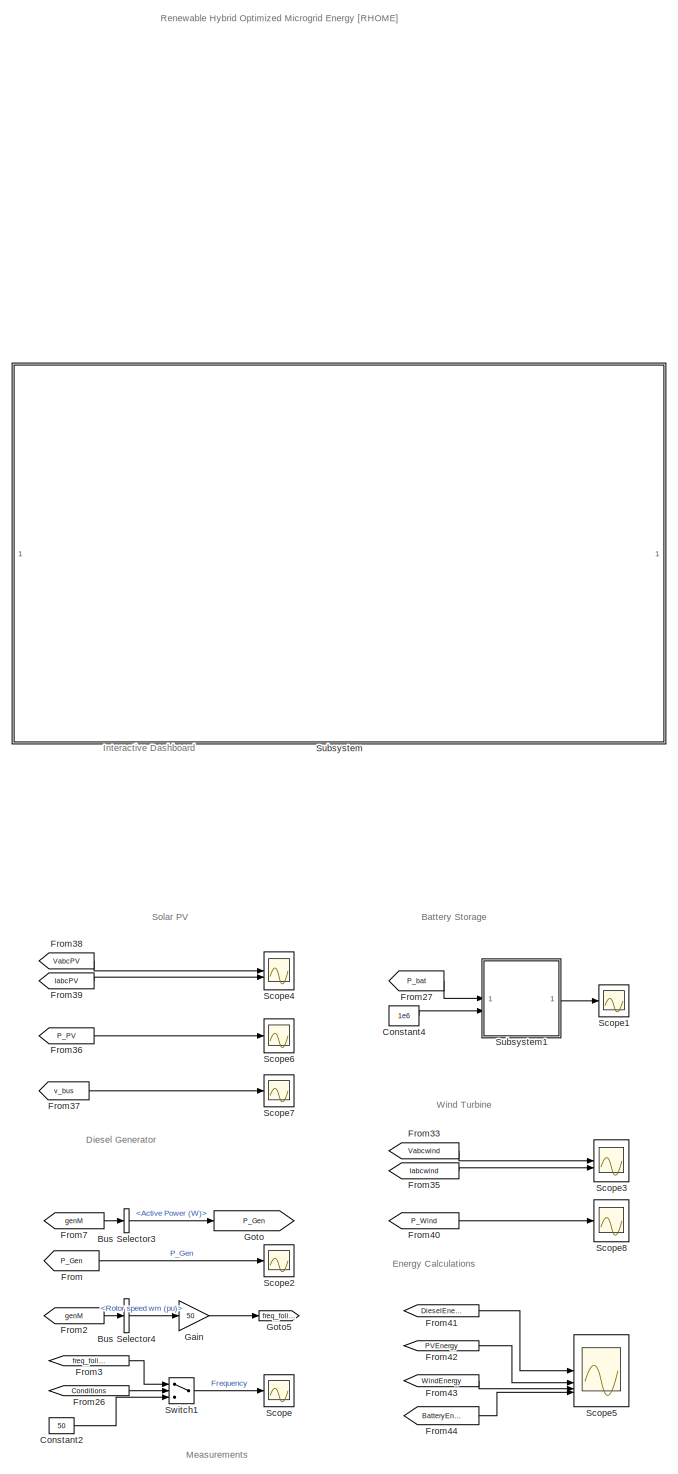
[diagram: root canvas - part 1/9, left side, full height]
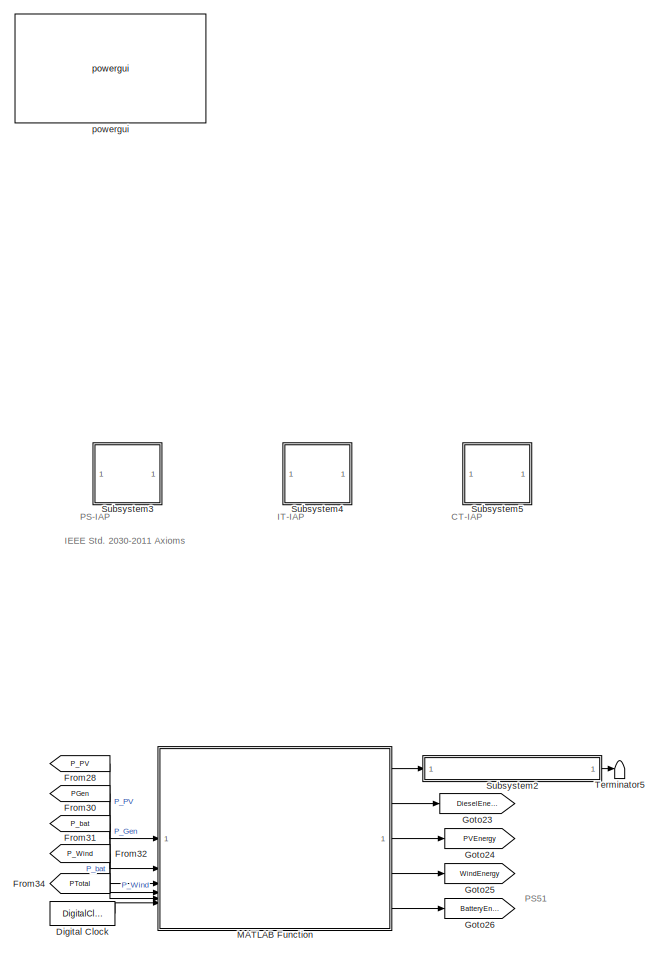
[diagram: root canvas - part 2/9, top right region]
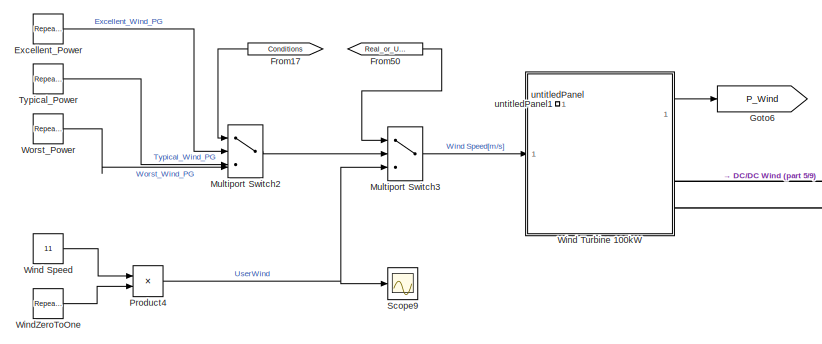
[diagram: root canvas - part 3/9, middle left region]
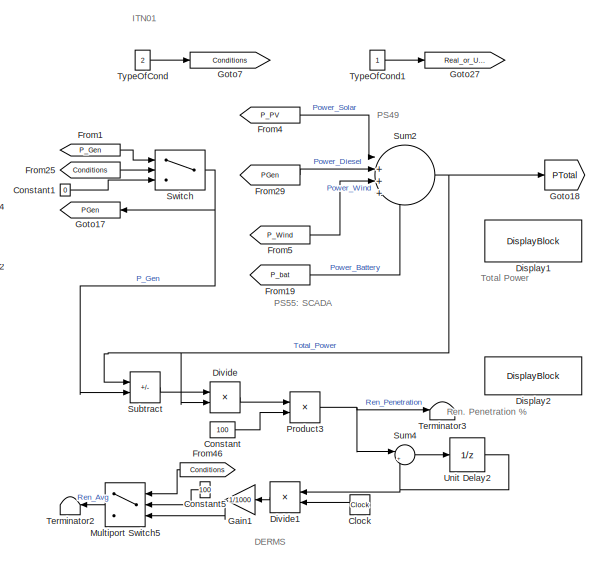
[diagram: root canvas - part 4/9, middle right region]
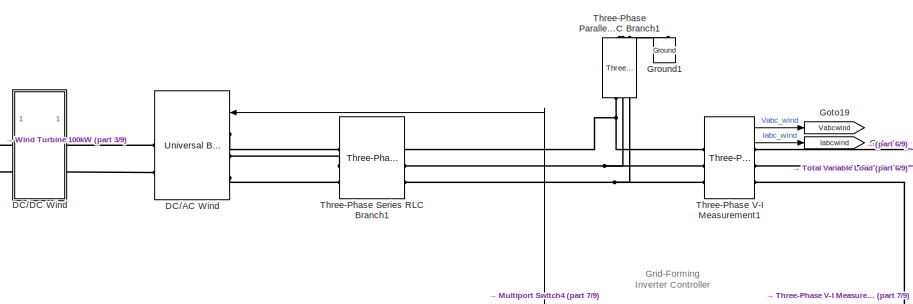
[diagram: root canvas - part 5/9, central region]
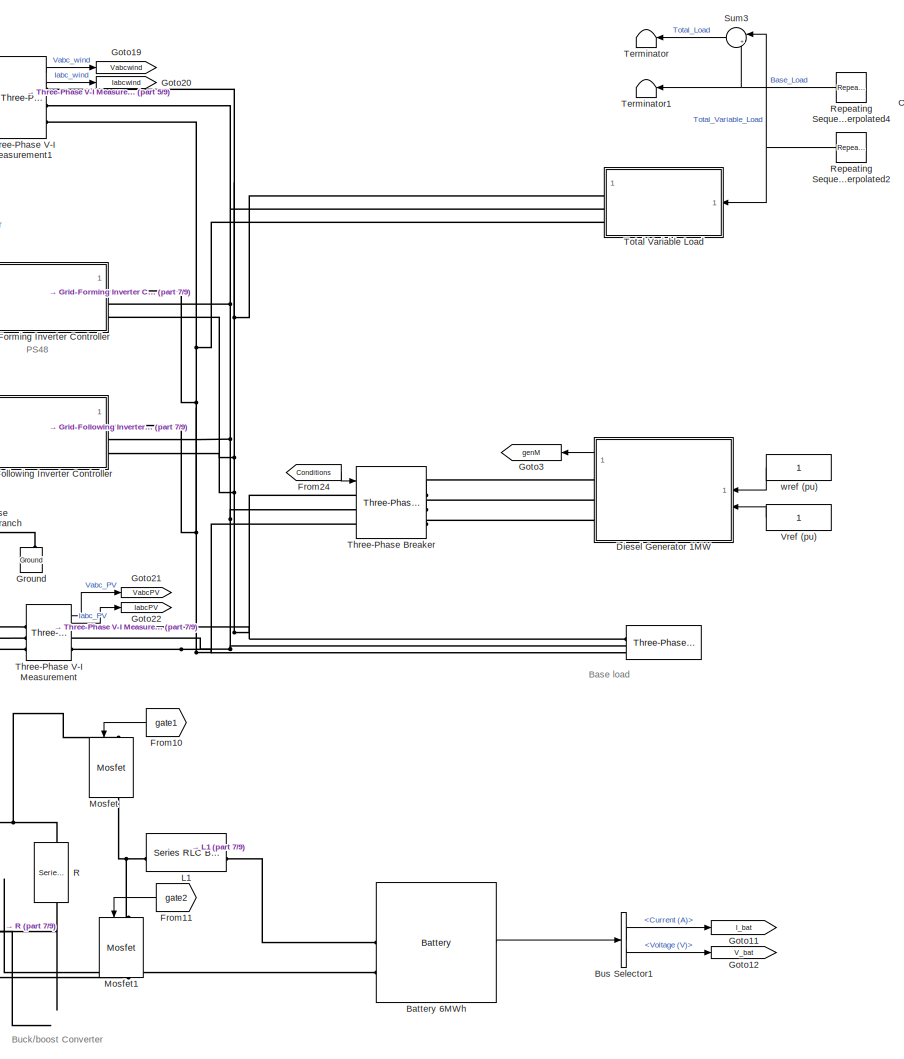
[diagram: root canvas - part 6/9, central region]
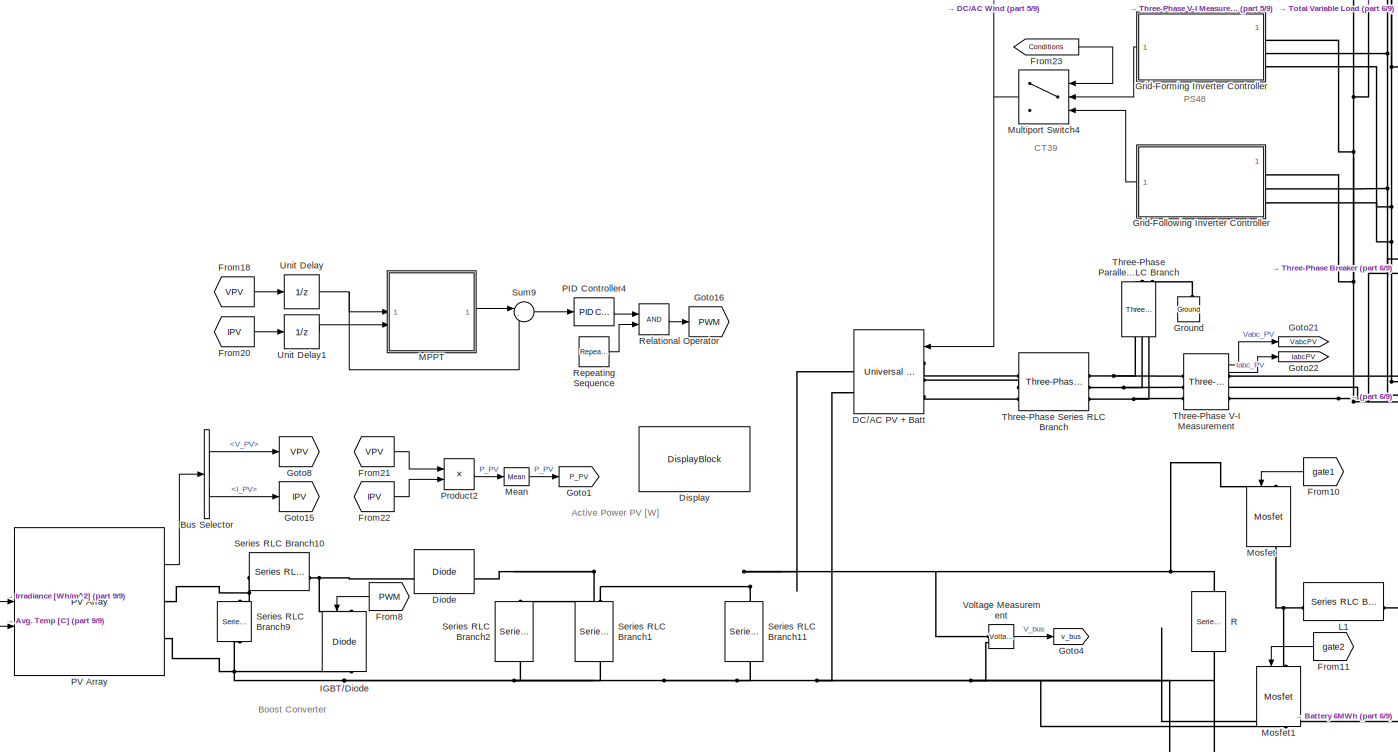
[diagram: root canvas - part 7/9, bottom center region]
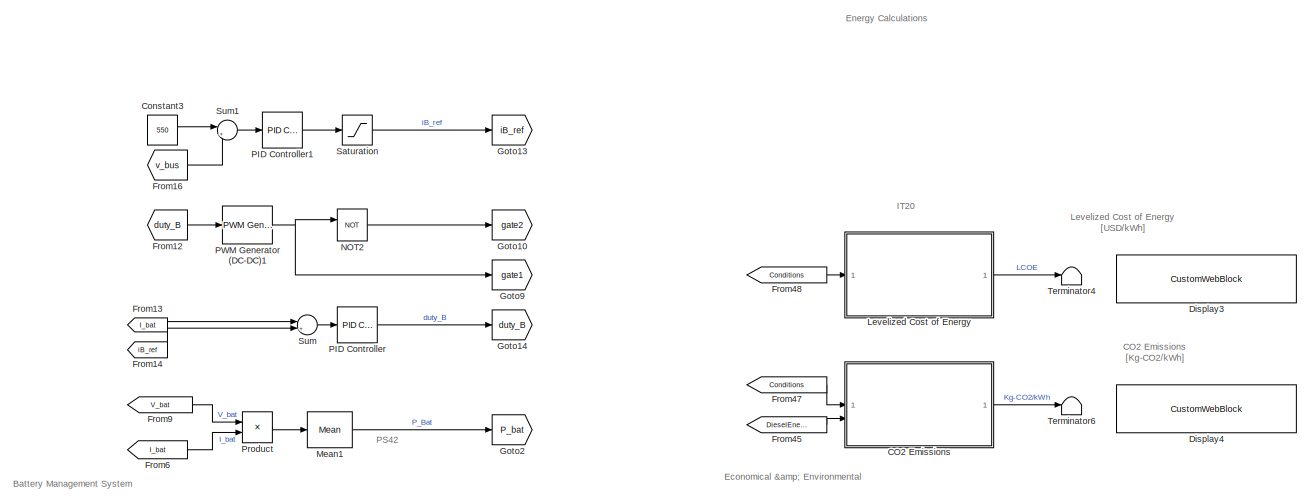
[diagram: root canvas - part 8/9, bottom right region]
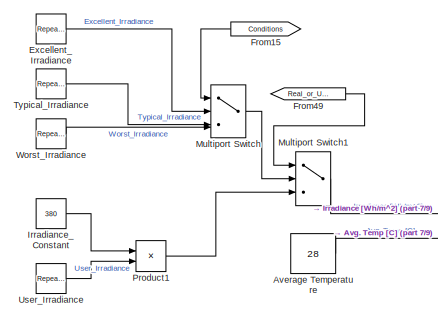
[diagram: root canvas - part 9/9, bottom left region]
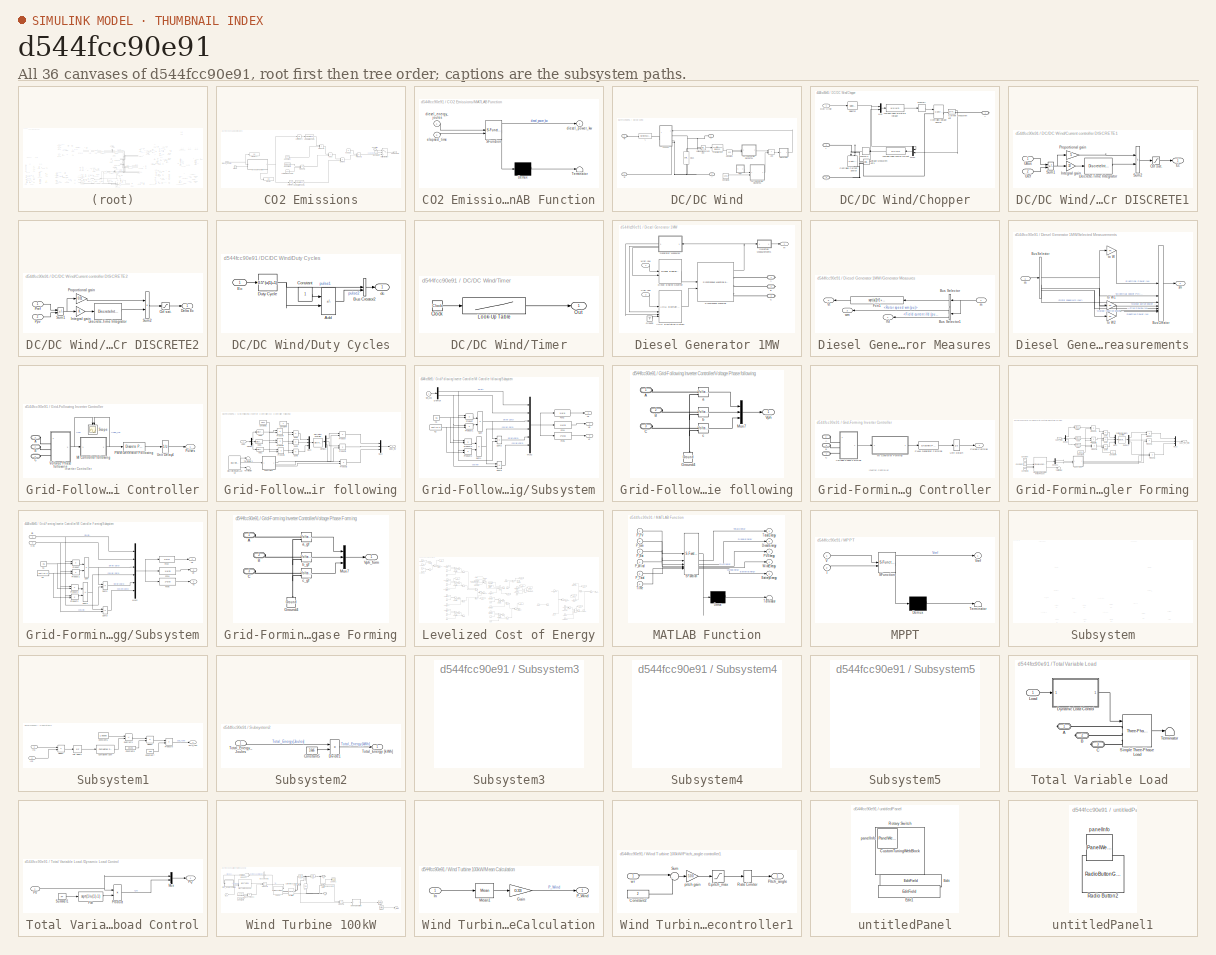
[diagram: thumbnail index - all 36 canvases of the model, root first then tree order]
MODEL slx_d544fcc90e91
KIND model
CONFIG AbsTol = auto
CONFIG EnableMultiTasking = on
CONFIG FixedStep = auto
CONFIG MaxStep = auto
CONFIG MinStep = auto
CONFIG RelTol = 1e-3
CONFIG SampleTimeConstraint = Unconstrained
CONFIG SolverName = VariableStepAuto
CONFIG StartTime = 0.0
CONFIG StopTime = 24
BLOCK [Reference]    REF=spsThreePhaseSeriesRLCLoadLib/Three-Phase
Series RLC Load
  AttributesFormatString = \n
  LibrarySourceBlock = sps_lib/Passives/Three-Phase\nSeries RLC Load
  NameLocation = top
  SourceBlock = spsThreePhaseSeriesRLCLoadLib/Three-Phase\nSeries RLC Load
  SourceType = Three-Phase Series RLC Load
BLOCK [Reference]       R  REF=spsSeriesRLCBranchLib/Series RLC Branch
  LibrarySourceBlock = sps_lib/Passives/Series RLC Branch
  NameLocation = left
  SourceBlock = spsSeriesRLCBranchLib/Series RLC Branch
  SourceType = Series RLC Branch
BLOCK [Constant] Average Temperature 
  Value = 28
BLOCK [Reference] Battery 6MWh   REF=spsBatteryLib/Battery
  LibrarySourceBlock = electricdrivelib/Extra Sources/Battery
  SourceBlock = spsBatteryLib/Battery
  SourceType = Battery
BLOCK [BusSelector] Bus Selector
  OutputSignals = V_PV,I_PV
BLOCK [BusSelector] Bus Selector1
  OutputSignals = Current (A),Voltage (V)
BLOCK [BusSelector] Bus Selector3
  OutputSignals = Active Power (W)
BLOCK [BusSelector] Bus Selector4
  OutputSignals = Rotor speed  wm  (pu)
BLOCK [SubSystem] CO2 Emissions
BLOCK [Sum] CO2 Emissions/Add1
  IconShape = rectangular
BLOCK [Clock] CO2 Emissions/Clock
BLOCK [Inport] CO2 Emissions/Condition
BLOCK [Constant] CO2 Emissions/Constant
  Value = 0.246
BLOCK [Constant] CO2 Emissions/Constant1
  Value = 0.08415
BLOCK [Constant] CO2 Emissions/Constant2
  Value = 0
BLOCK [Reference] CO2 Emissions/Cumulative Sum  REF=dspmathops/Cumulative
Sum
  SourceBlock = dspmathops/Cumulative\nSum
  SourceType = Cumulative Sum
  UserDataPersistent = on
BLOCK [Reference] CO2 Emissions/Cumulative Sum1  REF=dspmathops/Cumulative
Sum
  SourceBlock = dspmathops/Cumulative\nSum
  SourceType = Cumulative Sum
  UserDataPersistent = on
BLOCK [Inport] CO2 Emissions/Diesel_energy
  Port = 2
BLOCK [Display] CO2 Emissions/Display
  Decimation = 1
BLOCK [Display] CO2 Emissions/Display1
  Decimation = 1
BLOCK [Product] CO2 Emissions/Divide8
  Inputs = */
BLOCK [Outport] CO2 Emissions/Kg-CO2//kWh
BLOCK [SubSystem] CO2 Emissions/MATLAB Function
  ErrorFcn = Stateflow.Translate.translate
  PermitHierarchicalResolution = ExplicitOnly
  SFBlockType = MATLAB Function
  TreatAsAtomicUnit = on
BLOCK [Demux] CO2 Emissions/MATLAB Function/ Demux 
  Outputs = 1
BLOCK [S-Function] CO2 Emissions/MATLAB Function/ SFunction 
  EnableBusSupport = on
  FunctionName = sf_sfun
  PortCounts = [2 2]
  SFcnIsStateOwnerBlock = off
  SFunctionDeploymentMode = off
  Tag = Stateflow S-Function 3
BLOCK [Terminator] CO2 Emissions/MATLAB Function/ Terminator 
BLOCK [Inport] CO2 Emissions/MATLAB Function/diesel_energy_joules
BLOCK [Outport] CO2 Emissions/MATLAB Function/diesel_power_kw
BLOCK [Inport] CO2 Emissions/MATLAB Function/elapsed_time
  Port = 2
BLOCK [MultiPortSwitch] CO2 Emissions/Multiport Switch
  InputSameDT = off
  Inputs = 2
  SaturateOnIntegerOverflow = off
BLOCK [Product] CO2 Emissions/Product1
BLOCK [Product] CO2 Emissions/Product2
BLOCK [Product] CO2 Emissions/Product3
BLOCK [Constant] CO2 Emissions/Total Rated Power2
  Value = 1000
BLOCK [UnitDelay] CO2 Emissions/Unit Delay1
  HasFrameUpgradeWarning = on
BLOCK [UnitDelay] CO2 Emissions/Unit Delay2
  HasFrameUpgradeWarning = on
BLOCK [Constant] CO2 Emissions/kgCO2//L
  Value = 3.0
BLOCK [Clock] Clock
  NameLocation = top
BLOCK [Constant] Constant
  Value = 100
BLOCK [Constant] Constant1
  Value = 0
BLOCK [Constant] Constant2
  Value = 50
BLOCK [Constant] Constant3
  Value = 550
BLOCK [Constant] Constant4
  Value = 1e6
BLOCK [Constant] Constant5
  NameLocation = top
  Value = 100
BLOCK [Reference] DC//AC PV + Batt  REF=spsUniversalBridgeLib/Universal Bridge
  LibrarySourceBlock = sps_lib/Power Electronics/Universal Bridge
  SourceBlock = spsUniversalBridgeLib/Universal Bridge
  SourceType = Universal Bridge
BLOCK [Reference] DC//AC Wind  REF=spsUniversalBridgeLib/Universal Bridge
  LibrarySourceBlock = sps_lib/Power Electronics/Universal Bridge
  SourceBlock = spsUniversalBridgeLib/Universal Bridge
  SourceType = Universal Bridge
BLOCK [SubSystem] DC//DC Wind
BLOCK [PMIOPort] DC//DC Wind/+
  NameLocation = top
  Side = Right
  Tag = PMCPort
BLOCK [PMIOPort] DC//DC Wind/+ in
  NameLocation = top
  Port = 3
  Side = Left
  Tag = PMCPort
BLOCK [PMIOPort] DC//DC Wind/-
  NameLocation = top
  Port = 2
  Side = Right
  Tag = PMCPort
BLOCK [PMIOPort] DC//DC Wind/-in
  NameLocation = top
  Port = 4
  Side = Left
  Tag = PMCPort
BLOCK [Sum] DC//DC Wind/Add
  IconShape = rectangular
BLOCK [Reference] DC//DC Wind/CBus  REF=spsSeriesRLCBranchLib/Series RLC Branch
  LibrarySourceBlock = sps_lib/Passives/Series RLC Branch
  NameLocation = left
  SourceBlock = spsSeriesRLCBranchLib/Series RLC Branch
  SourceType = Series RLC Branch
BLOCK [SubSystem] DC//DC Wind/Chopper
  NameLocation = top
BLOCK [PMIOPort] DC//DC Wind/Chopper/+
  Port = 2
  Side = Left
BLOCK [PMIOPort] DC//DC Wind/Chopper/-
  Port = 3
  Side = Left
BLOCK [PMIOPort] DC//DC Wind/Chopper/A
  Side = Right
BLOCK [Fcn] DC//DC Wind/Chopper/Average-value armature voltage
  Expr = u(1)*u(2)
BLOCK [Fcn] DC//DC Wind/Chopper/Average-value source current
  Expr = u(1)*u(2)
BLOCK [Reference] DC//DC Wind/Chopper/Controlled Current Source  REF=spsControlledCurrentSourceLib/Controlled Current Source
  LibrarySourceBlock = sps_lib/Sources/Controlled Current Source
  NameLocation = left
  SourceBlock = spsControlledCurrentSourceLib/Controlled Current Source
  SourceType = Controlled Current Source
BLOCK [Reference] DC//DC Wind/Chopper/Controlled Voltage Source  REF=spsControlledVoltageSourceLib/Controlled Voltage Source
  LibrarySourceBlock = sps_lib/Sources/Controlled Voltage Source
  SourceBlock = spsControlledVoltageSourceLib/Controlled Voltage Source
  SourceType = Controlled Voltage Source
BLOCK [Reference] DC//DC Wind/Chopper/Current Measurement  REF=spsCurrentMeasurementLib/Current Measurement
  AttributesFormatString = \n
  LibrarySourceBlock = sps_lib/Sensors and Measurements/Current Measurement
  NameLocation = top
  SourceBlock = spsCurrentMeasurementLib/Current Measurement
  SourceType = Current Measurement
  Tag = PoWeRsYsTeMmEaSuReMeNt
BLOCK [Inport] DC//DC Wind/Chopper/Duty Cycle
BLOCK [Memory] DC//DC Wind/Chopper/Memory
BLOCK [Memory] DC//DC Wind/Chopper/Memory1
  NameLocation = top
BLOCK [Mux] DC//DC Wind/Chopper/Mux
  DisplayOption = bar
  Inputs = 2
BLOCK [Mux] DC//DC Wind/Chopper/Mux1
  DisplayOption = bar
  Inputs = 2
  NameLocation = top
BLOCK [Selector] DC//DC Wind/Chopper/Selector
  IndexOptions = Index vector (dialog)
  Indices = [1]
  InputPortWidth = 2
  OutputSizes = 1
BLOCK [Reference] DC//DC Wind/Chopper/Voltage Measurement1  REF=spsVoltageMeasurementLib/Voltage Measurement
  AttributesFormatString = \n
  LibrarySourceBlock = sps_lib/Sensors and Measurements/Voltage Measurement
  SourceBlock = spsVoltageMeasurementLib/Voltage Measurement
  SourceType = Voltage Measurement
  Tag = PoWeRsYsTeMmEaSuReMeNt
BLOCK [Constant] DC//DC Wind/Constant
  SampleTime = 1e-6
  Value = 100
BLOCK [Constant] DC//DC Wind/Constant1
  Value = 1.4e6
BLOCK [SubSystem] DC//DC Wind/Current controller DISCRETE1
  NameLocation = top
BLOCK [Saturate] DC//DC Wind/Current controller DISCRETE1/Ctrl sat.
  LowerLimit = -0.95
  UpperLimit = 0.95
BLOCK [DiscreteIntegrator] DC//DC Wind/Current controller DISCRETE1/Discrete-Time Integrator
  ICPrevOutput = DiscIntNeverNeededParam
  ICPrevScaledInput = DiscIntNeverNeededParam
  IntegratorMethod = Integration: Trapezoidal
  LimitOutput = on
  LowerSaturationLimit = -0.95
  SampleTime = -1
  UpperSaturationLimit = 0.95
BLOCK [Outport] DC//DC Wind/Current controller DISCRETE1/Ec
  InitialOutput = 0
  VectorParamsAs1DForOutWhenUnconnected = off
BLOCK [Gain] DC//DC Wind/Current controller DISCRETE1/Integral gain
  Gain = 10
  OutDataTypeStr = Inherit: Same as input
  ParamDataTypeStr = Inherit: Same as input
  SaturateOnIntegerOverflow = on
BLOCK [Gain] DC//DC Wind/Current controller DISCRETE1/Proportional gain
  Gain = 5
  NameLocation = top
  OutDataTypeStr = Inherit: Same as input
  ParamDataTypeStr = Inherit: Same as input
  SaturateOnIntegerOverflow = on
BLOCK [Sum] DC//DC Wind/Current controller DISCRETE1/Sum1
  IconShape = rectangular
  InputSameDT = on
  Inputs = +-
  OutDataTypeStr = Inherit: Same as first input
  SaturateOnIntegerOverflow = on
BLOCK [Sum] DC//DC Wind/Current controller DISCRETE1/Sum2
  IconShape = rectangular
  InputSameDT = on
  OutDataTypeStr = Inherit: Same as first input
  SaturateOnIntegerOverflow = on
BLOCK [Inport] DC//DC Wind/Current controller DISCRETE1/UBus
BLOCK [Inport] DC//DC Wind/Current controller DISCRETE1/Uref
  Port = 2
BLOCK [SubSystem] DC//DC Wind/Current controller DISCRETE2
  NameLocation = top
BLOCK [Saturate] DC//DC Wind/Current controller DISCRETE2/Ctrl sat.
  LowerLimit = -0.95
  UpperLimit = 0.95
BLOCK [Outport] DC//DC Wind/Current controller DISCRETE2/Delta Ec
  InitialOutput = 0
  VectorParamsAs1DForOutWhenUnconnected = off
BLOCK [DiscreteIntegrator] DC//DC Wind/Current controller DISCRETE2/Discrete-Time Integrator
  ICPrevOutput = DiscIntNeverNeededParam
  ICPrevScaledInput = DiscIntNeverNeededParam
  IntegratorMethod = Integration: Trapezoidal
  LimitOutput = on
  LowerSaturationLimit = -0.95
  SampleTime = -1
  UpperSaturationLimit = 0.95
BLOCK [Gain] DC//DC Wind/Current controller DISCRETE2/Integral gain
  OutDataTypeStr = Inherit: Same as input
  ParamDataTypeStr = Inherit: Same as input
  SaturateOnIntegerOverflow = on
BLOCK [Inport] DC//DC Wind/Current controller DISCRETE2/Ppv
  Port = 2
BLOCK [Inport] DC//DC Wind/Current controller DISCRETE2/Pref
BLOCK [Gain] DC//DC Wind/Current controller DISCRETE2/Proportional gain
  Gain = 0.01
  NameLocation = top
  OutDataTypeStr = Inherit: Same as input
  ParamDataTypeStr = Inherit: Same as input
  SaturateOnIntegerOverflow = on
BLOCK [Sum] DC//DC Wind/Current controller DISCRETE2/Sum1
  IconShape = rectangular
  InputSameDT = on
  Inputs = +-
  OutDataTypeStr = Inherit: Same as first input
  SaturateOnIntegerOverflow = on
BLOCK [Sum] DC//DC Wind/Current controller DISCRETE2/Sum2
  IconShape = rectangular
  InputSameDT = on
  OutDataTypeStr = Inherit: Same as first input
  SaturateOnIntegerOverflow = on
BLOCK [SubSystem] DC//DC Wind/Duty Cycles
BLOCK [Sum] DC//DC Wind/Duty Cycles/Add
  IconShape = rectangular
  Inputs = +-
BLOCK [BusCreator] DC//DC Wind/Duty Cycles/Bus Creator2
  DisplayOption = bar
  InheritFromInputs = on
  Inputs = 2
BLOCK [Constant] DC//DC Wind/Duty Cycles/Constant
BLOCK [Fcn] DC//DC Wind/Duty Cycles/Duty Cycle
  Expr = 0.5*(u(1)+1)
BLOCK [Inport] DC//DC Wind/Duty Cycles/Ec
BLOCK [Outport] DC//DC Wind/Duty Cycles/dc
  VectorParamsAs1DForOutWhenUnconnected = off
BLOCK [Reference] DC//DC Wind/L  REF=spsSeriesRLCBranchLib/Series RLC Branch
  LibrarySourceBlock = sps_lib/Passives/Series RLC Branch
  NameLocation = top
  SourceBlock = spsSeriesRLCBranchLib/Series RLC Branch
  SourceType = Series RLC Branch
BLOCK [SubSystem] DC//DC Wind/Timer
  DialogController = POWERSYS.PowerSysDialog
BLOCK [Clock] DC//DC Wind/Timer/Clock
BLOCK [Lookup] DC//DC Wind/Timer/Look-Up Table
  InputValues = tv
  Table = opv
BLOCK [Outport] DC//DC Wind/Timer/Out
  VectorParamsAs1DForOutWhenUnconnected = off
BLOCK [TransferFcn] DC//DC Wind/Transfer Fcn
  Denominator = [0.001 1]
BLOCK [Reference] DC//DC Wind/Voltage Measurement  REF=spsVoltageMeasurementLib/Voltage Measurement
  LibrarySourceBlock = sps_lib/Sensors and Measurements/Voltage Measurement
  SourceBlock = spsVoltageMeasurementLib/Voltage Measurement
  SourceType = Voltage Measurement
BLOCK [SubSystem] Diesel Generator 1MW
  ShowPortLabels = none
BLOCK [PMIOPort] Diesel Generator 1MW/A
  Side = Right
BLOCK [Reference] Diesel Generator 1MW/AC1A Excitation System  REF=spsAC1AExcitationSystemLib/AC1A
Excitation System
  LibrarySourceBlock = sps_lib/Electrical Machines/Synchronous Machine Control/AC1A\nExcitation System
  SourceBlock = spsAC1AExcitationSystemLib/AC1A\nExcitation System
  SourceType = AC1A Excitation System
BLOCK [PMIOPort] Diesel Generator 1MW/B
  Port = 2
  Side = Right
BLOCK [PMIOPort] Diesel Generator 1MW/C
  Port = 3
  Side = Right
BLOCK [Reference] Diesel Generator 1MW/Diesel Engine Governor  REF=spsDieselMotorModel/Diesel Engine Governor
  SourceBlock = spsDieselMotorModel/Diesel Engine Governor
  SourceType = Diesel Engine & Governor
BLOCK [SubSystem] Diesel Generator 1MW/Generator Measures
  NameLocation = top
BLOCK [BusSelector] Diesel Generator 1MW/Generator Measures/Bus Selector
  NameLocation = top
  OutputAsBus = on
  OutputSignals = dq0 components.Stator voltage  vq (pu),dq0 components.Stator voltage  vd (pu)
BLOCK [BusSelector] Diesel Generator 1MW/Generator Measures/Bus Selector1
  NameLocation = top
  OutputSignals = Mechanical.Rotor speed  wm  (pu),dq0 components.Field current  ifd (pu)
BLOCK [Fcn] Diesel Generator 1MW/Generator Measures/Fcn1
  Expr = sqrt(u(1)^2 + u(2)^2)
BLOCK [Outport] Diesel Generator 1MW/Generator Measures/Ifd
  VectorParamsAs1DForOutWhenUnconnected = off
BLOCK [Outport] Diesel Generator 1MW/Generator Measures/Vt
  Port = 2
  VectorParamsAs1DForOutWhenUnconnected = off
BLOCK [Inport] Diesel Generator 1MW/Generator Measures/m
BLOCK [Outport] Diesel Generator 1MW/Generator Measures/wm
  Port = 3
  VectorParamsAs1DForOutWhenUnconnected = off
BLOCK [Ground] Diesel Generator 1MW/Ground
BLOCK [SubSystem] Diesel Generator 1MW/Selected Measurements
BLOCK [BusCreator] Diesel Generator 1MW/Selected Measurements/Bus Creator
  DisplayOption = bar
  InheritFromInputs = on
  Inputs = 7
BLOCK [BusSelector] Diesel Generator 1MW/Selected Measurements/Bus Selector
  OutputSignals = Mechanical.Electrical power  Pe (pu),Mechanical.Rotor speed  wm  (pu),Output active power   Peo (pu),Output reactive power  Qeo (pu)
BLOCK [Inport] Diesel Generator 1MW/Selected Measurements/m
BLOCK [Outport] Diesel Generator 1MW/Selected Measurements/sm
  VectorParamsAs1DForOutWhenUnconnected = off
BLOCK [Gain] Diesel Generator 1MW/Selected Measurements/to W
  Gain = Pn
BLOCK [Gain] Diesel Generator 1MW/Selected Measurements/to W1
  Gain = Pn
BLOCK [Gain] Diesel Generator 1MW/Selected Measurements/to W2
  Gain = Pn
BLOCK [Reference] Diesel Generator 1MW/Synchronous Machine  REF=spsSynchronousMachinepuStandardLib/Synchronous Machine
pu Standard
  LibrarySourceBlock = sps_lib/Electrical Machines/Synchronous Machine\npu Standard
  SourceBlock = spsSynchronousMachinepuStandardLib/Synchronous Machine\npu Standard
  SourceType = Synchronous Machine
BLOCK [Inport] Diesel Generator 1MW/Vref (pu)
  Port = 2
BLOCK [Outport] Diesel Generator 1MW/m
  VectorParamsAs1DForOutWhenUnconnected = off
BLOCK [Inport] Diesel Generator 1MW/wref (pu)
BLOCK [DigitalClock] Digital Clock
BLOCK [Reference] Diode  REF=spsDiodeLib/Diode
  LibrarySourceBlock = sps_lib/Power Electronics/Diode
  SourceBlock = spsDiodeLib/Diode
  SourceType = Diode
BLOCK [DisplayBlock] Display
  Format = Integer
  LabelPosition = Hide
  Transparency = 1
BLOCK [DisplayBlock] Display1
  Format = Integer
  LabelPosition = Hide
  Transparency = 1
BLOCK [DisplayBlock] Display2
  Format = Integer
  LabelPosition = Hide
  Transparency = 1
BLOCK [CustomWebBlock] Display3
  Configuration = {"components":[{"name":"DisplayComponent","settings":{"bold":false,"font":"DSEG7 Classic","fontColor":[255,255,200],"fontSize":"14","format":"short","formatString":"%d","italic":false,"position":[0,0,1,1],"underline":false}},{"name":"BackgroundImageComponent","settings":{"image":{"size":[300,80],"src":"data:image\/svg+xml;base64,PHN2ZyBpZD0iZnJhbWUiIHhtbG5zPSJodHRwOi8vd3d3LnczLm9yZy8yMDAwL3N2ZyIge...<+1637ch>
  LabelPosition = Hide
  ShowInitialText = on
BLOCK [CustomWebBlock] Display4
  Configuration = {"components":[{"name":"DisplayComponent","settings":{"bold":false,"font":"DSEG7 Classic","fontColor":[255,255,200],"fontSize":"14","format":"short","formatString":"%d","italic":false,"position":[0,0,1,1],"underline":false}},{"name":"BackgroundImageComponent","settings":{"image":{"size":[300,80],"src":"data:image\/svg+xml;base64,PHN2ZyBpZD0iZnJhbWUiIHhtbG5zPSJodHRwOi8vd3d3LnczLm9yZy8yMDAwL3N2ZyIge...<+1637ch>
  LabelPosition = Hide
  ShowInitialText = on
BLOCK [Product] Divide
  Inputs = */
BLOCK [Product] Divide1
  Inputs = */
  NameLocation = top
BLOCK [Reference] Excellent_Irradiance  REF=simulink/Sources/Repeating
Sequence
Interpolated
  SourceBlock = simulink/Sources/Repeating\nSequence\nInterpolated
  SourceType = Repeating Sequence Interpolated
BLOCK [Reference] Excellent_Power  REF=simulink/Sources/Repeating
Sequence
Interpolated
  SourceBlock = simulink/Sources/Repeating\nSequence\nInterpolated
  SourceType = Repeating Sequence Interpolated
BLOCK [From] From
  GotoTag = P_Gen
BLOCK [From] From1
  GotoTag = P_Gen
BLOCK [From] From10
  GotoTag = gate1
  NameLocation = top
  TagVisibility = global
BLOCK [From] From11
  GotoTag = gate2
  NameLocation = top
  TagVisibility = global
BLOCK [From] From12
  GotoTag = duty_B
BLOCK [From] From13
  GotoTag = I_bat
  TagVisibility = global
BLOCK [From] From14
  GotoTag = iB_ref
BLOCK [From] From15
  GotoTag = Conditions
  NameLocation = top
BLOCK [From] From16
  GotoTag = v_bus
BLOCK [From] From17
  GotoTag = Conditions
  NameLocation = top
BLOCK [From] From18
  GotoTag = VPV
BLOCK [From] From19
  GotoTag = P_bat
BLOCK [From] From2
  GotoTag = genM
  NameLocation = top
  TagVisibility = global
BLOCK [From] From20
  GotoTag = IPV
BLOCK [From] From21
  GotoTag = VPV
BLOCK [From] From22
  GotoTag = IPV
BLOCK [From] From23
  GotoTag = Conditions
BLOCK [From] From24
  GotoTag = Conditions
BLOCK [From] From25
  GotoTag = Conditions
BLOCK [From] From26
  GotoTag = Conditions
BLOCK [From] From27
  GotoTag = P_bat
BLOCK [From] From28
  GotoTag = P_PV
BLOCK [From] From29
  GotoTag = PGen
BLOCK [From] From3
  GotoTag = freq_following
BLOCK [From] From30
  GotoTag = PGen
BLOCK [From] From31
  GotoTag = P_bat
BLOCK [From] From32
  GotoTag = P_Wind
BLOCK [From] From33
  GotoTag = Vabcwind
BLOCK [From] From34
  GotoTag = PTotal
BLOCK [From] From35
  GotoTag = Iabcwind
BLOCK [From] From36
  GotoTag = P_PV
BLOCK [From] From37
  GotoTag = v_bus
BLOCK [From] From38
  GotoTag = VabcPV
BLOCK [From] From39
  GotoTag = IabcPV
BLOCK [From] From4
  GotoTag = P_PV
BLOCK [From] From40
  GotoTag = P_Wind
BLOCK [From] From41
  GotoTag = DieselEnergy
BLOCK [From] From42
  GotoTag = PVEnergy
BLOCK [From] From43
  GotoTag = WindEnergy
BLOCK [From] From44
  GotoTag = BatteryEnergy
BLOCK [From] From45
  GotoTag = DieselEnergy
BLOCK [From] From46
  GotoTag = Conditions
  NameLocation = top
BLOCK [From] From47
  GotoTag = Conditions
BLOCK [From] From48
  GotoTag = Conditions
BLOCK [From] From49
  GotoTag = Real_or_User
BLOCK [From] From5
  GotoTag = P_Wind
BLOCK [From] From50
  GotoTag = Real_or_User
BLOCK [From] From6
  GotoTag = I_bat
  TagVisibility = global
BLOCK [From] From7
  GotoTag = genM
  NameLocation = top
  TagVisibility = global
BLOCK [From] From8
  GotoTag = PWM
  NameLocation = top
  TagVisibility = global
BLOCK [From] From9
  GotoTag = V_bat
BLOCK [Gain] Gain
  Gain = 50
BLOCK [Gain] Gain1
  Gain = 1/1000
  NameLocation = top
BLOCK [Goto] Goto
  GotoTag = P_Gen
BLOCK [Goto] Goto1
  GotoTag = P_PV
BLOCK [Goto] Goto10
  GotoTag = gate2
  TagVisibility = global
BLOCK [Goto] Goto11
  GotoTag = I_bat
  TagVisibility = global
BLOCK [Goto] Goto12
  GotoTag = V_bat
BLOCK [Goto] Goto13
  GotoTag = iB_ref
BLOCK [Goto] Goto14
  GotoTag = duty_B
BLOCK [Goto] Goto15
  GotoTag = IPV
BLOCK [Goto] Goto16
  GotoTag = PWM
  TagVisibility = global
BLOCK [Goto] Goto17
  GotoTag = PGen
  NameLocation = top
BLOCK [Goto] Goto18
  GotoTag = PTotal
BLOCK [Goto] Goto19
  GotoTag = Vabcwind
BLOCK [Goto] Goto2
  GotoTag = P_bat
BLOCK [Goto] Goto20
  GotoTag = Iabcwind
BLOCK [Goto] Goto21
  GotoTag = VabcPV
BLOCK [Goto] Goto22
  GotoTag = IabcPV
BLOCK [Goto] Goto23
  GotoTag = DieselEnergy
BLOCK [Goto] Goto24
  GotoTag = PVEnergy
BLOCK [Goto] Goto25
  GotoTag = WindEnergy
BLOCK [Goto] Goto26
  GotoTag = BatteryEnergy
BLOCK [Goto] Goto27
  GotoTag = Real_or_User
BLOCK [Goto] Goto3
  GotoTag = genM
  TagVisibility = global
BLOCK [Goto] Goto4
  GotoTag = v_bus
BLOCK [Goto] Goto5
  GotoTag = freq_following
BLOCK [Goto] Goto6
  GotoTag = P_Wind
BLOCK [Goto] Goto7
  GotoTag = Conditions
BLOCK [Goto] Goto8
  GotoTag = VPV
BLOCK [Goto] Goto9
  GotoTag = gate1
  TagVisibility = global
BLOCK [SubSystem] Grid-Following Inverter Controller
  NameLocation = top
BLOCK [PMIOPort] Grid-Following Inverter Controller/A
  Port = 3
  Side = Left
BLOCK [PMIOPort] Grid-Following Inverter Controller/B
  Port = 2
  Side = Left
BLOCK [PMIOPort] Grid-Following Inverter Controller/C
  Side = Left
BLOCK [SubSystem] Grid-Following Inverter Controller/MI Controller following
  ShowPortLabels = FromPortBlockName
BLOCK [Constant] Grid-Following Inverter Controller/MI Controller following/Constant1
  Value = 1/231
BLOCK [Constant] Grid-Following Inverter Controller/MI Controller following/Constant4
BLOCK [Demux] Grid-Following Inverter Controller/MI Controller following/Demux
  Outputs = 3
BLOCK [Demux] Grid-Following Inverter Controller/MI Controller following/Demux1
  Outputs = 3
BLOCK [Reference] Grid-Following Inverter Controller/MI Controller following/Discrete PI Controller  REF=powerlib_extras/Discrete 
Control Blocks/Discrete
PI Controller
  SourceBlock = powerlib_extras/Discrete \nControl Blocks/Discrete\nPI Controller
  SourceType = Discrete PI Controller
BLOCK [Reference] Grid-Following Inverter Controller/MI Controller following/Discrete Virtual PLL 50 Hz  REF=powerlib_extras/Discrete 
Control Blocks/Discrete
Virtual PLL
  SourceBlock = powerlib_extras/Discrete \nControl Blocks/Discrete\nVirtual PLL
  SourceType = Discrete Virtual PLL
BLOCK [Mux] Grid-Following Inverter Controller/MI Controller following/Mux2
  DisplayOption = bar
  Inputs = 3
BLOCK [Mux] Grid-Following Inverter Controller/MI Controller following/Mux3
  DisplayOption = bar
  Inputs = 3
BLOCK [Product] Grid-Following Inverter Controller/MI Controller following/Product
  RndMeth = Zero
BLOCK [Product] Grid-Following Inverter Controller/MI Controller following/Product1
  RndMeth = Zero
BLOCK [Product] Grid-Following Inverter Controller/MI Controller following/Product2
  RndMeth = Zero
BLOCK [Product] Grid-Following Inverter Controller/MI Controller following/Product4
  RndMeth = Zero
BLOCK [Product] Grid-Following Inverter Controller/MI Controller following/Product5
  RndMeth = Zero
BLOCK [Product] Grid-Following Inverter Controller/MI Controller following/Product6
  RndMeth = Zero
BLOCK [SubSystem] Grid-Following Inverter Controller/MI Controller following/Subsystem
BLOCK [Demux] Grid-Following Inverter Controller/MI Controller following/Subsystem/Demux
  DisplayOption = none
  Outputs = 2
BLOCK [Fcn] Grid-Following Inverter Controller/MI Controller following/Subsystem/Fcn2
  Expr = 1*u[1]
BLOCK [Fcn] Grid-Following Inverter Controller/MI Controller following/Subsystem/Fcn4
  Expr = 1*u[3]
BLOCK [Fcn] Grid-Following Inverter Controller/MI Controller following/Subsystem/Fcn5
  Expr = 1*u[5]
BLOCK [Constant] Grid-Following Inverter Controller/MI Controller following/Subsystem/K1
  Value = 0.5
BLOCK [Constant] Grid-Following Inverter Controller/MI Controller following/Subsystem/K2
  Value = sqrt(3)/2
BLOCK [Mux] Grid-Following Inverter Controller/MI Controller following/Subsystem/Mux2
  Inputs = 6
BLOCK [Product] Grid-Following Inverter Controller/MI Controller following/Subsystem/Product
  InputSameDT = on
  OutDataTypeStr = Inherit: Same as first input
  SaturateOnIntegerOverflow = on
BLOCK [Product] Grid-Following Inverter Controller/MI Controller following/Subsystem/Product1
  InputSameDT = on
  OutDataTypeStr = Inherit: Same as first input
  SaturateOnIntegerOverflow = on
BLOCK [Product] Grid-Following Inverter Controller/MI Controller following/Subsystem/Product2
  InputSameDT = on
  OutDataTypeStr = Inherit: Same as first input
  SaturateOnIntegerOverflow = on
BLOCK [Product] Grid-Following Inverter Controller/MI Controller following/Subsystem/Product3
  InputSameDT = on
  OutDataTypeStr = Inherit: Same as first input
  SaturateOnIntegerOverflow = on
BLOCK [Sum] Grid-Following Inverter Controller/MI Controller following/Subsystem/Sum
  IconShape = rectangular
  InputSameDT = on
  Inputs = --
  OutDataTypeStr = Inherit: Same as first input
  SaturateOnIntegerOverflow = on
BLOCK [Sum] Grid-Following Inverter Controller/MI Controller following/Subsystem/Sum1
  IconShape = rectangular
  InputSameDT = on
  Inputs = -+
  OutDataTypeStr = Inherit: Same as first input
  SaturateOnIntegerOverflow = on
BLOCK [Sum] Grid-Following Inverter Controller/MI Controller following/Subsystem/Sum2
  IconShape = rectangular
  InputSameDT = on
  Inputs = --
  OutDataTypeStr = Inherit: Same as first input
  SaturateOnIntegerOverflow = on
BLOCK [Sum] Grid-Following Inverter Controller/MI Controller following/Subsystem/Sum3
  IconShape = rectangular
  InputSameDT = on
  Inputs = --
  OutDataTypeStr = Inherit: Same as first input
  SaturateOnIntegerOverflow = on
BLOCK [Outport] Grid-Following Inverter Controller/MI Controller following/Subsystem/Va
  VectorParamsAs1DForOutWhenUnconnected = off
BLOCK [Outport] Grid-Following Inverter Controller/MI Controller following/Subsystem/Vb
  Port = 2
  VectorParamsAs1DForOutWhenUnconnected = off
BLOCK [Outport] Grid-Following Inverter Controller/MI Controller following/Subsystem/Vc
  Port = 3
  VectorParamsAs1DForOutWhenUnconnected = off
BLOCK [Inport] Grid-Following Inverter Controller/MI Controller following/Subsystem/sin_cos
  PortDimensions = 2
BLOCK [Sum] Grid-Following Inverter Controller/MI Controller following/Sum1
  IconShape = rectangular
  InputSameDT = on
  Inputs = -+
  OutDataTypeStr = Inherit: Same as first input
  SaturateOnIntegerOverflow = on
BLOCK [Sum] Grid-Following Inverter Controller/MI Controller following/Sum2
  IconShape = rectangular
  InputSameDT = on
  Inputs = -+
  OutDataTypeStr = Inherit: Same as first input
  SaturateOnIntegerOverflow = on
BLOCK [Sum] Grid-Following Inverter Controller/MI Controller following/Sum3
  IconShape = rectangular
  InputSameDT = on
  Inputs = -+
  OutDataTypeStr = Inherit: Same as first input
  SaturateOnIntegerOverflow = on
BLOCK [Terminator] Grid-Following Inverter Controller/MI Controller following/Terminator
BLOCK [Terminator] Grid-Following Inverter Controller/MI Controller following/Terminator1
BLOCK [Reference] Grid-Following Inverter Controller/MI Controller following/Vab1  REF=powerlib_extras/Discrete
Measurements/Discrete 
RMS value
  SourceBlock = powerlib_extras/Discrete\nMeasurements/Discrete \nRMS value
  SourceType = Discrete RMS value
BLOCK [Reference] Grid-Following Inverter Controller/MI Controller following/Vab5  REF=powerlib_extras/Discrete
Measurements/Discrete 
RMS value
  SourceBlock = powerlib_extras/Discrete\nMeasurements/Discrete \nRMS value
  SourceType = Discrete RMS value
BLOCK [Reference] Grid-Following Inverter Controller/MI Controller following/Vab6  REF=powerlib_extras/Discrete
Measurements/Discrete 
RMS value
  SourceBlock = powerlib_extras/Discrete\nMeasurements/Discrete \nRMS value
  SourceType = Discrete RMS value
BLOCK [Inport] Grid-Following Inverter Controller/MI Controller following/Vabc
BLOCK [Outport] Grid-Following Inverter Controller/MI Controller following/Vabc_inv
  VectorParamsAs1DForOutWhenUnconnected = off
BLOCK [Reference] Grid-Following Inverter Controller/PWM Generator Following  REF=powerlib_extras/Discrete 
Control Blocks/Discrete
PWM Generator
  NameLocation = top
  SourceBlock = powerlib_extras/Discrete \nControl Blocks/Discrete\nPWM Generator
  SourceType = Discrete PWM Generator
BLOCK [Outport] Grid-Following Inverter Controller/Pulses
  NameLocation = top
  VectorParamsAs1DForOutWhenUnconnected = off
BLOCK [Scope] Grid-Following Inverter Controller/Scope
  Floating = off
  NameLocation = left
  NumInputPorts = 2
  ScopeSpecificationString = Simulink.scopes.TimeScopeBlockCfg('CurrentConfiguration', extmgr.ConfigurationSet(extmgr.Configuration('Core','General UI',true),extmgr.Configuration('Core','Source UI',true),extmgr.Configuration('Sources','WiredSimulink',true,'DataLoggingVariableName','ScopeData1'),extmgr.Configuration('Visuals','Time Domain',true,'SerializedDisplays',{struct('MinYLimReal','-437.0304','MaxYLimReal','983.12629','Y...<+2250ch>
BLOCK [UnitDelay] Grid-Following Inverter Controller/Unit Delay4
  HasFrameUpgradeWarning = on
  SampleTime = 20e-6
BLOCK [SubSystem] Grid-Following Inverter Controller/Voltage Phase following
BLOCK [PMIOPort] Grid-Following Inverter Controller/Voltage Phase following/A
  Side = Left
BLOCK [PMIOPort] Grid-Following Inverter Controller/Voltage Phase following/B
  Port = 2
  Side = Left
BLOCK [PMIOPort] Grid-Following Inverter Controller/Voltage Phase following/C
  Port = 3
  Side = Left
BLOCK [Reference] Grid-Following Inverter Controller/Voltage Phase following/Ground4  REF=spsGroundLib/Ground
  LibrarySourceBlock = sps_lib/Utilities/Ground
  NameLocation = right
  SourceBlock = spsGroundLib/Ground
  SourceType = Ground
BLOCK [Mux] Grid-Following Inverter Controller/Voltage Phase following/Mux7
  DisplayOption = bar
  Inputs = 3
BLOCK [Outport] Grid-Following Inverter Controller/Voltage Phase following/Vph
  VectorParamsAs1DForOutWhenUnconnected = off
BLOCK [Reference] Grid-Following Inverter Controller/Voltage Phase following/a  REF=spsVoltageMeasurementLib/Voltage Measurement
  AttributesFormatString = \n
  LibrarySourceBlock = sps_lib/Sensors and Measurements/Voltage Measurement
  SourceBlock = spsVoltageMeasurementLib/Voltage Measurement
  SourceType = Voltage Measurement
  Tag = PoWeRsYsTeMmEaSuReMeNt
BLOCK [Reference] Grid-Following Inverter Controller/Voltage Phase following/b  REF=spsVoltageMeasurementLib/Voltage Measurement
  AttributesFormatString = \n
  LibrarySourceBlock = sps_lib/Sensors and Measurements/Voltage Measurement
  SourceBlock = spsVoltageMeasurementLib/Voltage Measurement
  SourceType = Voltage Measurement
  Tag = PoWeRsYsTeMmEaSuReMeNt
BLOCK [Reference] Grid-Following Inverter Controller/Voltage Phase following/c  REF=spsVoltageMeasurementLib/Voltage Measurement
  AttributesFormatString = \n
  LibrarySourceBlock = sps_lib/Sensors and Measurements/Voltage Measurement
  SourceBlock = spsVoltageMeasurementLib/Voltage Measurement
  SourceType = Voltage Measurement
  Tag = PoWeRsYsTeMmEaSuReMeNt
BLOCK [SubSystem] Grid-Forming Inverter Controller
  NameLocation = top
  ShowPortLabels = FromPortBlockName
BLOCK [PMIOPort] Grid-Forming Inverter Controller/A
  Port = 3
  Side = Left
BLOCK [PMIOPort] Grid-Forming Inverter Controller/B
  Port = 2
  Side = Left
BLOCK [PMIOPort] Grid-Forming Inverter Controller/C
  Side = Left
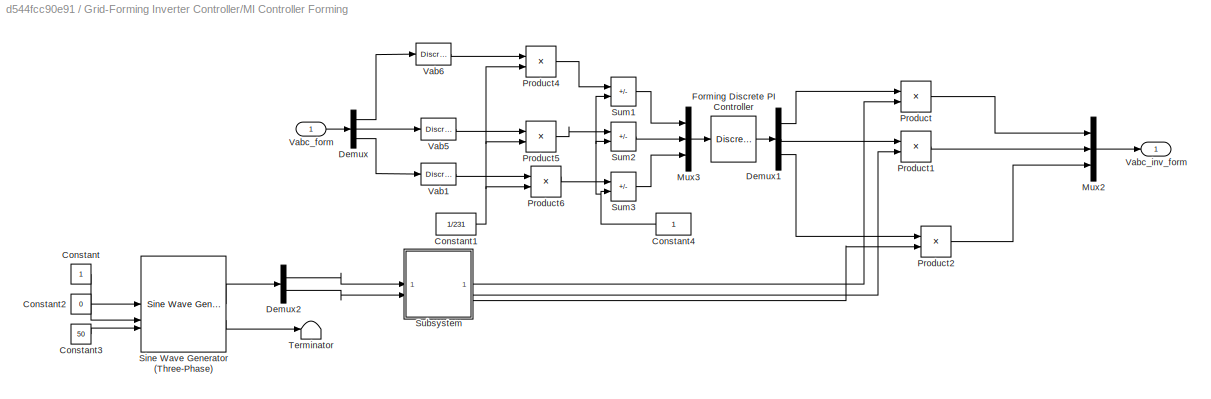
BLOCK [SubSystem] Grid-Forming Inverter Controller/MI Controller Forming
  ShowPortLabels = FromPortBlockName
BLOCK [Constant] Grid-Forming Inverter Controller/MI Controller Forming/Constant
BLOCK [Constant] Grid-Forming Inverter Controller/MI Controller Forming/Constant1
  Value = 1/231
BLOCK [Constant] Grid-Forming Inverter Controller/MI Controller Forming/Constant2
  Value = 0
BLOCK [Constant] Grid-Forming Inverter Controller/MI Controller Forming/Constant3
  Value = 50
BLOCK [Constant] Grid-Forming Inverter Controller/MI Controller Forming/Constant4
  NameLocation = top
BLOCK [Demux] Grid-Forming Inverter Controller/MI Controller Forming/Demux
  Outputs = 3
BLOCK [Demux] Grid-Forming Inverter Controller/MI Controller Forming/Demux1
  Outputs = 3
BLOCK [Demux] Grid-Forming Inverter Controller/MI Controller Forming/Demux2
  Outputs = 2
BLOCK [Reference] Grid-Forming Inverter Controller/MI Controller Forming/Forming Discrete PI Controller  REF=powerlib_extras/Discrete 
Control Blocks/Discrete
PI Controller
  SourceBlock = powerlib_extras/Discrete \nControl Blocks/Discrete\nPI Controller
  SourceType = Discrete PI Controller
BLOCK [Mux] Grid-Forming Inverter Controller/MI Controller Forming/Mux2
  DisplayOption = bar
  Inputs = 3
BLOCK [Mux] Grid-Forming Inverter Controller/MI Controller Forming/Mux3
  DisplayOption = bar
  Inputs = 3
BLOCK [Product] Grid-Forming Inverter Controller/MI Controller Forming/Product
  RndMeth = Zero
BLOCK [Product] Grid-Forming Inverter Controller/MI Controller Forming/Product1
  RndMeth = Zero
BLOCK [Product] Grid-Forming Inverter Controller/MI Controller Forming/Product2
  RndMeth = Zero
BLOCK [Product] Grid-Forming Inverter Controller/MI Controller Forming/Product4
  RndMeth = Zero
BLOCK [Product] Grid-Forming Inverter Controller/MI Controller Forming/Product5
  RndMeth = Zero
BLOCK [Product] Grid-Forming Inverter Controller/MI Controller Forming/Product6
  RndMeth = Zero
BLOCK [Reference] Grid-Forming Inverter Controller/MI Controller Forming/Sine Wave Generator (Three-Phase)  REF=eeSinGeneratorThreePhase/Sine Wave Generator
(Three-Phase)
  LibrarySourceBlock = ee_sl_lib/General Control/Sine Wave Generator\n(Three-Phase)
  SourceBlock = eeSinGeneratorThreePhase/Sine Wave Generator\n(Three-Phase)
  SourceType = Sine Wave Generator (Three-Phase)
BLOCK [SubSystem] Grid-Forming Inverter Controller/MI Controller Forming/Subsystem
BLOCK [Inport] Grid-Forming Inverter Controller/MI Controller Forming/Subsystem/Cos
  Port = 2
BLOCK [Fcn] Grid-Forming Inverter Controller/MI Controller Forming/Subsystem/Fcn2
  Expr = 1*u[1]
BLOCK [Fcn] Grid-Forming Inverter Controller/MI Controller Forming/Subsystem/Fcn4
  Expr = 1*u[3]
BLOCK [Fcn] Grid-Forming Inverter Controller/MI Controller Forming/Subsystem/Fcn5
  Expr = 1*u[5]
BLOCK [Constant] Grid-Forming Inverter Controller/MI Controller Forming/Subsystem/K1
  Value = 0.5
BLOCK [Constant] Grid-Forming Inverter Controller/MI Controller Forming/Subsystem/K2
  Value = sqrt(3)/2
BLOCK [Mux] Grid-Forming Inverter Controller/MI Controller Forming/Subsystem/Mux2
  Inputs = 6
BLOCK [Product] Grid-Forming Inverter Controller/MI Controller Forming/Subsystem/Product
  InputSameDT = on
  OutDataTypeStr = Inherit: Same as first input
  SaturateOnIntegerOverflow = on
BLOCK [Product] Grid-Forming Inverter Controller/MI Controller Forming/Subsystem/Product1
  InputSameDT = on
  OutDataTypeStr = Inherit: Same as first input
  SaturateOnIntegerOverflow = on
BLOCK [Product] Grid-Forming Inverter Controller/MI Controller Forming/Subsystem/Product2
  InputSameDT = on
  OutDataTypeStr = Inherit: Same as first input
  SaturateOnIntegerOverflow = on
BLOCK [Product] Grid-Forming Inverter Controller/MI Controller Forming/Subsystem/Product3
  InputSameDT = on
  OutDataTypeStr = Inherit: Same as first input
  SaturateOnIntegerOverflow = on
BLOCK [Inport] Grid-Forming Inverter Controller/MI Controller Forming/Subsystem/Sin
BLOCK [Sum] Grid-Forming Inverter Controller/MI Controller Forming/Subsystem/Sum
  IconShape = rectangular
  InputSameDT = on
  Inputs = --
  OutDataTypeStr = Inherit: Same as first input
  SaturateOnIntegerOverflow = on
BLOCK [Sum] Grid-Forming Inverter Controller/MI Controller Forming/Subsystem/Sum1
  IconShape = rectangular
  InputSameDT = on
  Inputs = -+
  OutDataTypeStr = Inherit: Same as first input
  SaturateOnIntegerOverflow = on
BLOCK [Sum] Grid-Forming Inverter Controller/MI Controller Forming/Subsystem/Sum2
  IconShape = rectangular
  InputSameDT = on
  Inputs = --
  OutDataTypeStr = Inherit: Same as first input
  SaturateOnIntegerOverflow = on
BLOCK [Sum] Grid-Forming Inverter Controller/MI Controller Forming/Subsystem/Sum3
  IconShape = rectangular
  InputSameDT = on
  Inputs = --
  OutDataTypeStr = Inherit: Same as first input
  SaturateOnIntegerOverflow = on
BLOCK [Outport] Grid-Forming Inverter Controller/MI Controller Forming/Subsystem/Va
  VectorParamsAs1DForOutWhenUnconnected = off
BLOCK [Outport] Grid-Forming Inverter Controller/MI Controller Forming/Subsystem/Vb
  Port = 2
  VectorParamsAs1DForOutWhenUnconnected = off
BLOCK [Outport] Grid-Forming Inverter Controller/MI Controller Forming/Subsystem/Vc
  Port = 3
  VectorParamsAs1DForOutWhenUnconnected = off
BLOCK [Sum] Grid-Forming Inverter Controller/MI Controller Forming/Sum1
  IconShape = rectangular
  InputSameDT = on
  Inputs = -+
  OutDataTypeStr = Inherit: Same as first input
  SaturateOnIntegerOverflow = on
BLOCK [Sum] Grid-Forming Inverter Controller/MI Controller Forming/Sum2
  IconShape = rectangular
  InputSameDT = on
  Inputs = -+
  OutDataTypeStr = Inherit: Same as first input
  SaturateOnIntegerOverflow = on
BLOCK [Sum] Grid-Forming Inverter Controller/MI Controller Forming/Sum3
  IconShape = rectangular
  InputSameDT = on
  Inputs = -+
  OutDataTypeStr = Inherit: Same as first input
  SaturateOnIntegerOverflow = on
BLOCK [Terminator] Grid-Forming Inverter Controller/MI Controller Forming/Terminator
BLOCK [Reference] Grid-Forming Inverter Controller/MI Controller Forming/Vab1  REF=powerlib_extras/Discrete
Measurements/Discrete 
RMS value
  SourceBlock = powerlib_extras/Discrete\nMeasurements/Discrete \nRMS value
  SourceType = Discrete RMS value
BLOCK [Reference] Grid-Forming Inverter Controller/MI Controller Forming/Vab5  REF=powerlib_extras/Discrete
Measurements/Discrete 
RMS value
  SourceBlock = powerlib_extras/Discrete\nMeasurements/Discrete \nRMS value
  SourceType = Discrete RMS value
BLOCK [Reference] Grid-Forming Inverter Controller/MI Controller Forming/Vab6  REF=powerlib_extras/Discrete
Measurements/Discrete 
RMS value
  SourceBlock = powerlib_extras/Discrete\nMeasurements/Discrete \nRMS value
  SourceType = Discrete RMS value
BLOCK [Inport] Grid-Forming Inverter Controller/MI Controller Forming/Vabc_form
BLOCK [Outport] Grid-Forming Inverter Controller/MI Controller Forming/Vabc_inv_form
  VectorParamsAs1DForOutWhenUnconnected = off
BLOCK [Reference] Grid-Forming Inverter Controller/PWM Generator Forming  REF=powerlib_extras/Discrete 
Control Blocks/Discrete
PWM Generator
  NameLocation = top
  SourceBlock = powerlib_extras/Discrete \nControl Blocks/Discrete\nPWM Generator
  SourceType = Discrete PWM Generator
BLOCK [Outport] Grid-Forming Inverter Controller/Pulses Forming
  NameLocation = top
  VectorParamsAs1DForOutWhenUnconnected = off
BLOCK [UnitDelay] Grid-Forming Inverter Controller/Unit Delay4
  HasFrameUpgradeWarning = on
  SampleTime = 20e-6
BLOCK [SubSystem] Grid-Forming Inverter Controller/Voltage Phase Forming
BLOCK [PMIOPort] Grid-Forming Inverter Controller/Voltage Phase Forming/A
  Side = Left
BLOCK [PMIOPort] Grid-Forming Inverter Controller/Voltage Phase Forming/B
  Port = 2
  Side = Left
BLOCK [PMIOPort] Grid-Forming Inverter Controller/Voltage Phase Forming/C
  Port = 3
  Side = Left
BLOCK [Reference] Grid-Forming Inverter Controller/Voltage Phase Forming/Ground4  REF=spsGroundLib/Ground
  NameLocation = right
  SourceBlock = spsGroundLib/Ground
  SourceType = Ground
BLOCK [Mux] Grid-Forming Inverter Controller/Voltage Phase Forming/Mux7
  DisplayOption = bar
  Inputs = 3
BLOCK [Outport] Grid-Forming Inverter Controller/Voltage Phase Forming/Vph_form
  VectorParamsAs1DForOutWhenUnconnected = off
BLOCK [Reference] Grid-Forming Inverter Controller/Voltage Phase Forming/a_gf  REF=spsVoltageMeasurementLib/Voltage Measurement
  AttributesFormatString = \n
  SourceBlock = spsVoltageMeasurementLib/Voltage Measurement
  SourceType = Voltage Measurement
  Tag = PoWeRsYsTeMmEaSuReMeNt
BLOCK [Reference] Grid-Forming Inverter Controller/Voltage Phase Forming/b_gf  REF=spsVoltageMeasurementLib/Voltage Measurement
  AttributesFormatString = \n
  SourceBlock = spsVoltageMeasurementLib/Voltage Measurement
  SourceType = Voltage Measurement
  Tag = PoWeRsYsTeMmEaSuReMeNt
BLOCK [Reference] Grid-Forming Inverter Controller/Voltage Phase Forming/c_gf  REF=spsVoltageMeasurementLib/Voltage Measurement
  AttributesFormatString = \n
  SourceBlock = spsVoltageMeasurementLib/Voltage Measurement
  SourceType = Voltage Measurement
  Tag = PoWeRsYsTeMmEaSuReMeNt
BLOCK [Reference] Ground  REF=spsGroundLib/Ground
  LibrarySourceBlock = sps_lib/Utilities/Ground
  NameLocation = right
  SourceBlock = spsGroundLib/Ground
  SourceType = Ground
BLOCK [Reference] Ground1  REF=spsGroundLib/Ground
  LibrarySourceBlock = sps_lib/Utilities/Ground
  NameLocation = right
  SourceBlock = spsGroundLib/Ground
  SourceType = Ground
BLOCK [Reference] IGBT//Diode  REF=spsIGBTDiodeLib/IGBT//Diode
  LibrarySourceBlock = sps_lib/Power Electronics/IGBT//Diode
  NameLocation = left
  SourceBlock = spsIGBTDiodeLib/IGBT//Diode
  SourceType = IGBT/Diode
BLOCK [Constant] Irradiance_Constant
  Value = 380
BLOCK [Reference] L1  REF=spsSeriesRLCBranchLib/Series RLC Branch
  LibrarySourceBlock = sps_lib/Passives/Series RLC Branch
  SourceBlock = spsSeriesRLCBranchLib/Series RLC Branch
  SourceType = Series RLC Branch
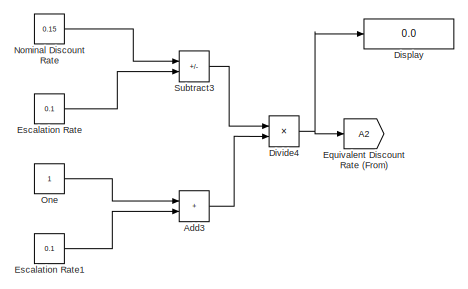
[diagram: Levelized Cost of Energy - part 1/4, top left region]
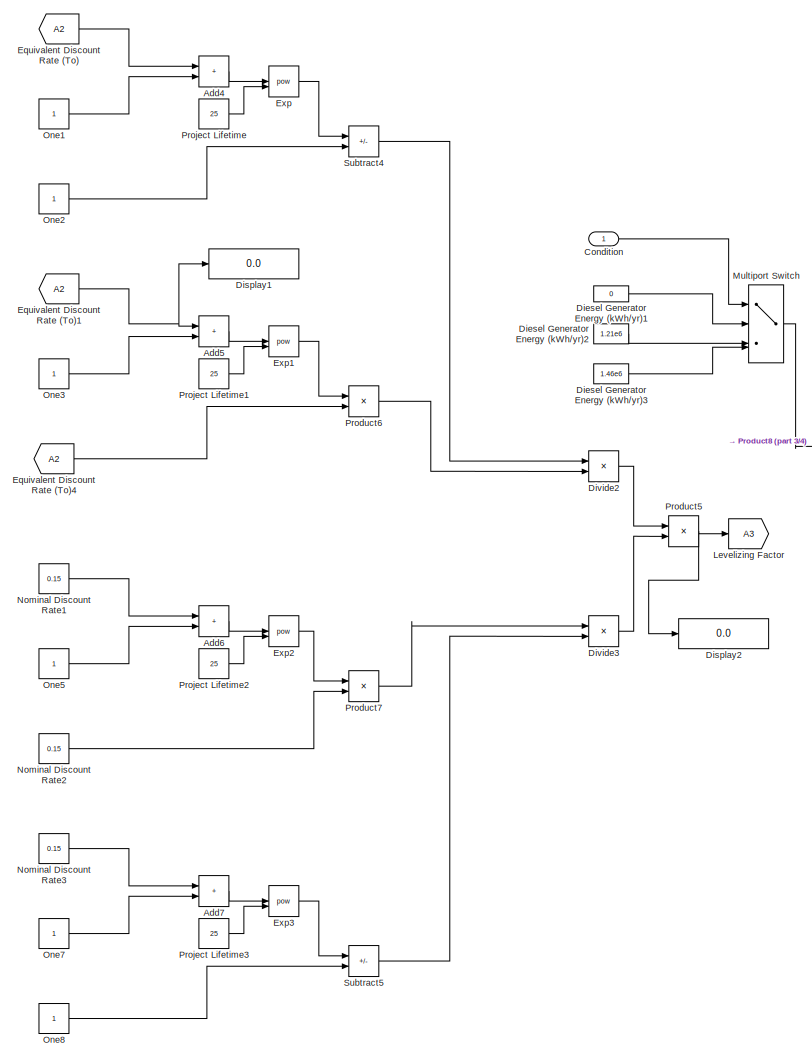
[diagram: Levelized Cost of Energy - part 2/4, left side, full height]
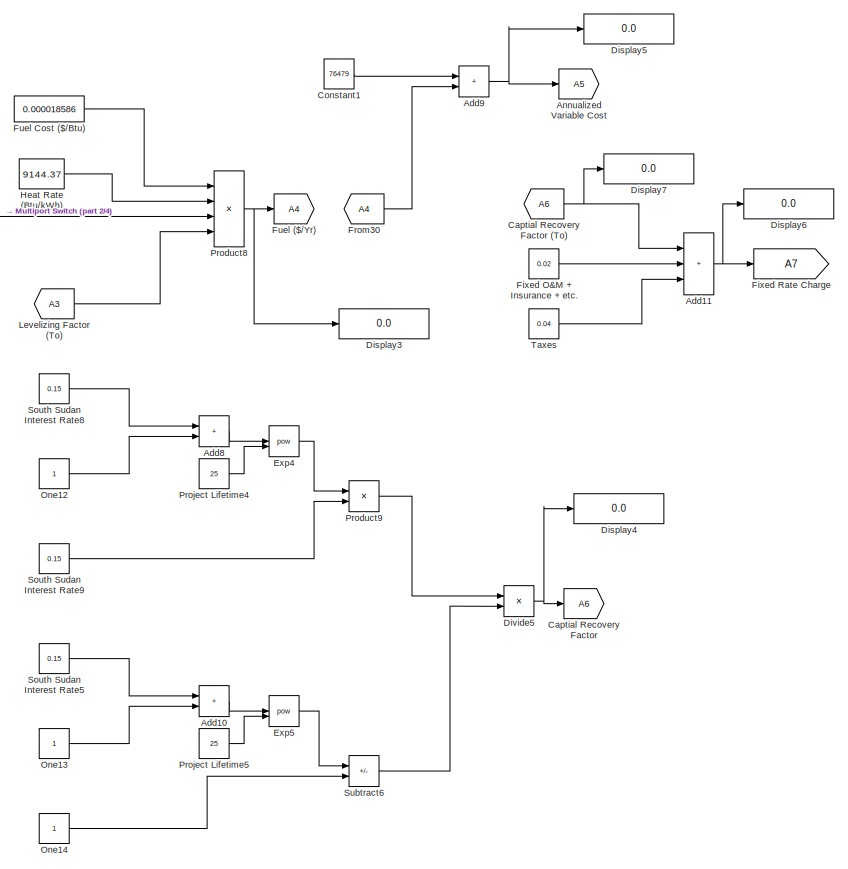
[diagram: Levelized Cost of Energy - part 3/4, central region]
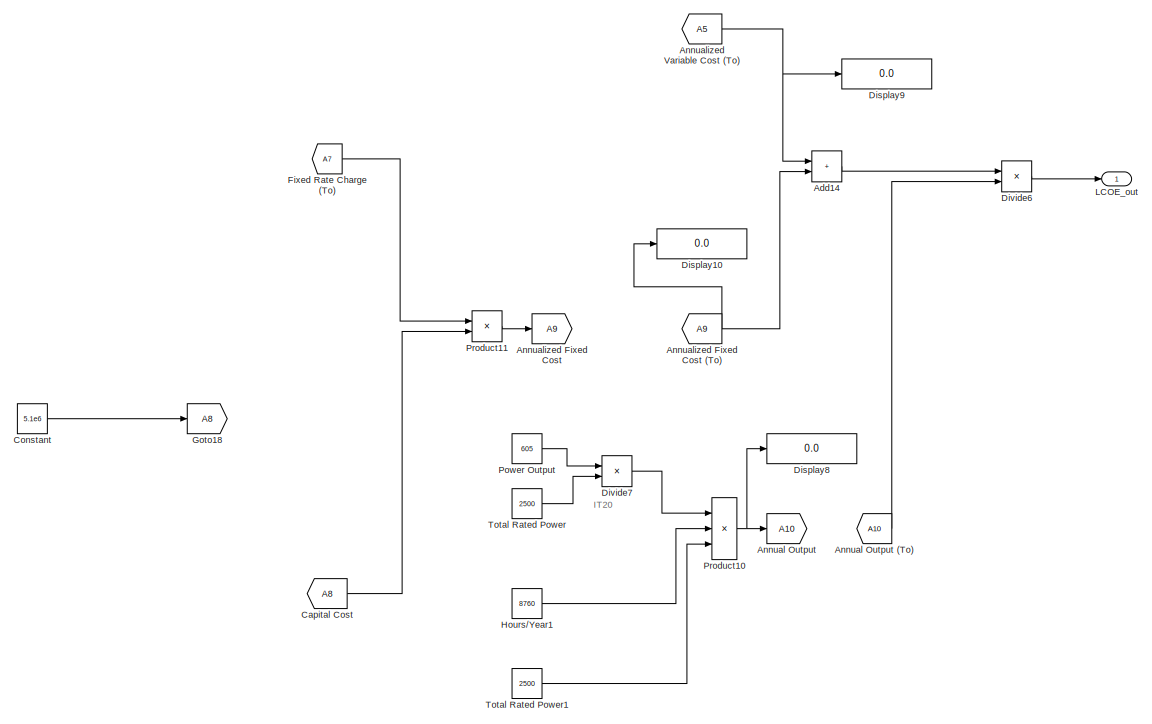
[diagram: Levelized Cost of Energy - part 4/4, middle right region]
BLOCK [SubSystem] Levelized Cost of Energy
BLOCK [Sum] Levelized Cost of Energy/Add10
  IconShape = rectangular
BLOCK [Sum] Levelized Cost of Energy/Add11
  IconShape = rectangular
  Inputs = +++
BLOCK [Sum] Levelized Cost of Energy/Add14
  IconShape = rectangular
BLOCK [Sum] Levelized Cost of Energy/Add3
  IconShape = rectangular
BLOCK [Sum] Levelized Cost of Energy/Add4
  IconShape = rectangular
BLOCK [Sum] Levelized Cost of Energy/Add5
  IconShape = rectangular
BLOCK [Sum] Levelized Cost of Energy/Add6
  IconShape = rectangular
BLOCK [Sum] Levelized Cost of Energy/Add7
  IconShape = rectangular
BLOCK [Sum] Levelized Cost of Energy/Add8
  IconShape = rectangular
BLOCK [Sum] Levelized Cost of Energy/Add9
  IconShape = rectangular
BLOCK [Goto] Levelized Cost of Energy/Annual Output
  GotoTag = A10
BLOCK [From] Levelized Cost of Energy/Annual Output (To)
  GotoTag = A10
BLOCK [Goto] Levelized Cost of Energy/Annualized Fixed Cost
  GotoTag = A9
BLOCK [From] Levelized Cost of Energy/Annualized Fixed Cost (To)
  GotoTag = A9
BLOCK [Goto] Levelized Cost of Energy/Annualized Variable Cost
  GotoTag = A5
BLOCK [From] Levelized Cost of Energy/Annualized Variable Cost (To)
  GotoTag = A5
BLOCK [From] Levelized Cost of Energy/Capital Cost
  GotoTag = A8
BLOCK [Goto] Levelized Cost of Energy/Captial Recovery Factor
  GotoTag = A6
BLOCK [From] Levelized Cost of Energy/Captial Recovery Factor (To)
  GotoTag = A6
BLOCK [Inport] Levelized Cost of Energy/Condition
BLOCK [Constant] Levelized Cost of Energy/Constant
  Value = 5.1e6
BLOCK [Constant] Levelized Cost of Energy/Constant1
  Value = 76479
BLOCK [Constant] Levelized Cost of Energy/Diesel Generator Energy (kWh//yr)1
  Value = 0
BLOCK [Constant] Levelized Cost of Energy/Diesel Generator Energy (kWh//yr)2
  Value = 1.21e6
BLOCK [Constant] Levelized Cost of Energy/Diesel Generator Energy (kWh//yr)3
  Value = 1.46e6
BLOCK [Display] Levelized Cost of Energy/Display
  Decimation = 1
BLOCK [Display] Levelized Cost of Energy/Display1
  Decimation = 1
BLOCK [Display] Levelized Cost of Energy/Display10
  Decimation = 1
BLOCK [Display] Levelized Cost of Energy/Display2
  Decimation = 1
BLOCK [Display] Levelized Cost of Energy/Display3
  Decimation = 1
BLOCK [Display] Levelized Cost of Energy/Display4
  Decimation = 1
BLOCK [Display] Levelized Cost of Energy/Display5
  Decimation = 1
BLOCK [Display] Levelized Cost of Energy/Display6
  Decimation = 1
BLOCK [Display] Levelized Cost of Energy/Display7
  Decimation = 1
BLOCK [Display] Levelized Cost of Energy/Display8
  Decimation = 1
BLOCK [Display] Levelized Cost of Energy/Display9
  Decimation = 1
BLOCK [Product] Levelized Cost of Energy/Divide2
  Inputs = */
BLOCK [Product] Levelized Cost of Energy/Divide3
  Inputs = */
BLOCK [Product] Levelized Cost of Energy/Divide4
  Inputs = */
BLOCK [Product] Levelized Cost of Energy/Divide5
  Inputs = */
BLOCK [Product] Levelized Cost of Energy/Divide6
  Inputs = */
BLOCK [Product] Levelized Cost of Energy/Divide7
  Inputs = */
BLOCK [Goto] Levelized Cost of Energy/Equivalent Discount Rate (From)
  GotoTag = A2
BLOCK [From] Levelized Cost of Energy/Equivalent Discount Rate (To)
  GotoTag = A2
BLOCK [From] Levelized Cost of Energy/Equivalent Discount Rate (To)1
  GotoTag = A2
BLOCK [From] Levelized Cost of Energy/Equivalent Discount Rate (To)4
  GotoTag = A2
BLOCK [Constant] Levelized Cost of Energy/Escalation Rate
  Value = 0.1
BLOCK [Constant] Levelized Cost of Energy/Escalation Rate1
  Value = 0.1
BLOCK [Math] Levelized Cost of Energy/Exp
  Operator = pow
  OutputSignalType = real
BLOCK [Math] Levelized Cost of Energy/Exp1
  Operator = pow
  OutputSignalType = real
BLOCK [Math] Levelized Cost of Energy/Exp2
  Operator = pow
  OutputSignalType = real
BLOCK [Math] Levelized Cost of Energy/Exp3
  Operator = pow
  OutputSignalType = real
BLOCK [Math] Levelized Cost of Energy/Exp4
  Operator = pow
  OutputSignalType = real
BLOCK [Math] Levelized Cost of Energy/Exp5
  Operator = pow
  OutputSignalType = real
BLOCK [Constant] Levelized Cost of Energy/Fixed O&M + Insurance + etc. 
  Value = 0.02
BLOCK [Goto] Levelized Cost of Energy/Fixed Rate Charge
  GotoTag = A7
BLOCK [From] Levelized Cost of Energy/Fixed Rate Charge (To)
  GotoTag = A7
BLOCK [From] Levelized Cost of Energy/From30
  GotoTag = A4
BLOCK [Goto] Levelized Cost of Energy/Fuel ($//Yr)
  GotoTag = A4
BLOCK [Constant] Levelized Cost of Energy/Fuel Cost ($//Btu)
  Value = 0.000018586
BLOCK [Goto] Levelized Cost of Energy/Goto18
  GotoTag = A8
BLOCK [Constant] Levelized Cost of Energy/Heat Rate (Btu//kWh)
  Value = 9144.37
BLOCK [Constant] Levelized Cost of Energy/Hours//Year1
  Value = 8760
BLOCK [Outport] Levelized Cost of Energy/LCOE_out
BLOCK [Goto] Levelized Cost of Energy/Levelizing Factor
  GotoTag = A3
BLOCK [From] Levelized Cost of Energy/Levelizing Factor (To)
  GotoTag = A3
BLOCK [MultiPortSwitch] Levelized Cost of Energy/Multiport Switch
  InputSameDT = off
  SaturateOnIntegerOverflow = off
BLOCK [Constant] Levelized Cost of Energy/Nominal Discount Rate
  Value = 0.15
BLOCK [Constant] Levelized Cost of Energy/Nominal Discount Rate1
  Value = 0.15
BLOCK [Constant] Levelized Cost of Energy/Nominal Discount Rate2
  Value = 0.15
BLOCK [Constant] Levelized Cost of Energy/Nominal Discount Rate3
  Value = 0.15
BLOCK [Constant] Levelized Cost of Energy/One
BLOCK [Constant] Levelized Cost of Energy/One1
BLOCK [Constant] Levelized Cost of Energy/One12
BLOCK [Constant] Levelized Cost of Energy/One13
BLOCK [Constant] Levelized Cost of Energy/One14
BLOCK [Constant] Levelized Cost of Energy/One2
BLOCK [Constant] Levelized Cost of Energy/One3
BLOCK [Constant] Levelized Cost of Energy/One5
BLOCK [Constant] Levelized Cost of Energy/One7
BLOCK [Constant] Levelized Cost of Energy/One8
BLOCK [Constant] Levelized Cost of Energy/Power Output
  Value = 605
BLOCK [Product] Levelized Cost of Energy/Product10
  Inputs = 3
BLOCK [Product] Levelized Cost of Energy/Product11
BLOCK [Product] Levelized Cost of Energy/Product5
BLOCK [Product] Levelized Cost of Energy/Product6
BLOCK [Product] Levelized Cost of Energy/Product7
BLOCK [Product] Levelized Cost of Energy/Product8
  Inputs = 4
BLOCK [Product] Levelized Cost of Energy/Product9
BLOCK [Constant] Levelized Cost of Energy/Project Lifetime
  Value = 25
BLOCK [Constant] Levelized Cost of Energy/Project Lifetime1
  Value = 25
BLOCK [Constant] Levelized Cost of Energy/Project Lifetime2
  Value = 25
BLOCK [Constant] Levelized Cost of Energy/Project Lifetime3
  Value = 25
BLOCK [Constant] Levelized Cost of Energy/Project Lifetime4
  Value = 25
BLOCK [Constant] Levelized Cost of Energy/Project Lifetime5
  Value = 25
BLOCK [Constant] Levelized Cost of Energy/South Sudan Interest Rate5
  Value = 0.15
BLOCK [Constant] Levelized Cost of Energy/South Sudan Interest Rate8
  Value = 0.15
BLOCK [Constant] Levelized Cost of Energy/South Sudan Interest Rate9
  Value = 0.15
BLOCK [Sum] Levelized Cost of Energy/Subtract3
  IconShape = rectangular
  Inputs = +-
BLOCK [Sum] Levelized Cost of Energy/Subtract4
  IconShape = rectangular
  Inputs = +-
BLOCK [Sum] Levelized Cost of Energy/Subtract5
  IconShape = rectangular
  Inputs = +-
BLOCK [Sum] Levelized Cost of Energy/Subtract6
  IconShape = rectangular
  Inputs = +-
BLOCK [Constant] Levelized Cost of Energy/Taxes
  Value = 0.04
BLOCK [Constant] Levelized Cost of Energy/Total Rated Power
  Value = 2500
BLOCK [Constant] Levelized Cost of Energy/Total Rated Power1
  Value = 2500
BLOCK [SubSystem] MATLAB Function
  ErrorFcn = Stateflow.Translate.translate
  PermitHierarchicalResolution = ExplicitOnly
  SFBlockType = MATLAB Function
  TreatAsAtomicUnit = on
BLOCK [Demux] MATLAB Function/ Demux 
  Outputs = 1
BLOCK [S-Function] MATLAB Function/ SFunction 
  EnableBusSupport = on
  FunctionName = sf_sfun
  PortCounts = [6 6]
  SFcnIsStateOwnerBlock = off
  SFunctionDeploymentMode = off
  Tag = Stateflow S-Function 1
BLOCK [Terminator] MATLAB Function/ Terminator 
BLOCK [Outport] MATLAB Function/BatteryEnergy
  Port = 5
BLOCK [Outport] MATLAB Function/DieselEnergy
  Port = 2
BLOCK [Outport] MATLAB Function/PVEnergy
  Port = 3
BLOCK [Inport] MATLAB Function/P_Bat
  Port = 3
BLOCK [Inport] MATLAB Function/P_Gen
  Port = 2
BLOCK [Inport] MATLAB Function/P_PV
BLOCK [Inport] MATLAB Function/P_Total
  Port = 5
BLOCK [Inport] MATLAB Function/P_Wind
  Port = 4
BLOCK [Inport] MATLAB Function/Time
  Port = 6
BLOCK [Outport] MATLAB Function/TotalEnergy
BLOCK [Outport] MATLAB Function/WindEnergy
  Port = 4
BLOCK [SubSystem] MPPT
  ErrorFcn = Stateflow.Translate.translate
  PermitHierarchicalResolution = ExplicitOnly
  SFBlockType = MATLAB Function
  TreatAsAtomicUnit = on
BLOCK [Demux] MPPT/ Demux 
  Outputs = 1
BLOCK [S-Function] MPPT/ SFunction 
  EnableBusSupport = on
  FunctionName = sf_sfun
  PortCounts = [2 2]
  SFcnIsStateOwnerBlock = off
  SFunctionDeploymentMode = off
  Tag = Stateflow S-Function 2
BLOCK [Terminator] MPPT/ Terminator 
BLOCK [Inport] MPPT/I
  Port = 2
BLOCK [Inport] MPPT/V
BLOCK [Outport] MPPT/Vref
  VectorParamsAs1DForOutWhenUnconnected = off
BLOCK [Reference] Mean  REF=spsMeanLib/Mean
  LibrarySourceBlock = sps_lib/Sensors and Measurements/Mean
  SourceBlock = spsMeanLib/Mean
  SourceType = Mean
BLOCK [Reference] Mean1  REF=spsMeanLib/Mean
  LibrarySourceBlock = sps_lib/Sensors and Measurements/Mean
  SourceBlock = spsMeanLib/Mean
  SourceType = Mean
BLOCK [Reference] Mosfet  REF=spsMosfetLib/Mosfet
  LibrarySourceBlock = sps_lib/Power Electronics/Mosfet
  NameLocation = left
  SourceBlock = spsMosfetLib/Mosfet
  SourceType = Mosfet
BLOCK [Reference] Mosfet1  REF=spsMosfetLib/Mosfet
  LibrarySourceBlock = sps_lib/Power Electronics/Mosfet
  NameLocation = left
  SourceBlock = spsMosfetLib/Mosfet
  SourceType = Mosfet
BLOCK [MultiPortSwitch] Multiport Switch
  InputSameDT = off
  SaturateOnIntegerOverflow = off
BLOCK [MultiPortSwitch] Multiport Switch1
  InputSameDT = off
  Inputs = 2
  SaturateOnIntegerOverflow = off
BLOCK [MultiPortSwitch] Multiport Switch2
  InputSameDT = off
  SaturateOnIntegerOverflow = off
BLOCK [MultiPortSwitch] Multiport Switch3
  InputSameDT = off
  Inputs = 2
  SaturateOnIntegerOverflow = off
BLOCK [MultiPortSwitch] Multiport Switch4
  InputSameDT = off
  Inputs = 2
  NameLocation = top
  SaturateOnIntegerOverflow = off
BLOCK [MultiPortSwitch] Multiport Switch5
  InputSameDT = off
  Inputs = 2
  NameLocation = top
  SaturateOnIntegerOverflow = off
BLOCK [Logic] NOT2
  AllPortsSameDT = off
  Operator = NOT
  OutDataTypeStr = boolean
BLOCK [Reference] PID Controller  REF=slpidlib/PID Controller
  SourceBlock = slpidlib/PID Controller
  SourceType = PID 1dof
BLOCK [Reference] PID Controller1  REF=slpidlib/PID Controller
  SourceBlock = slpidlib/PID Controller
  SourceType = PID 1dof
BLOCK [Reference] PID Controller4  REF=slpidlib/PID Controller
  SourceBlock = slpidlib/PID Controller
  SourceType = PID 1dof
BLOCK [Reference] PV Array   REF=spsPVArrayLib/PV Array
  LibrarySourceBlock = sps_lib/Sources/PV Array
  SourceBlock = spsPVArrayLib/PV Array
  SourceType = PV array
BLOCK [Reference] PWM Generator (DC-DC)1  REF=spsPWMGeneratorDCDCLib/PWM Generator
(DC-DC)
  LibrarySourceBlock = sps_lib/Power Electronics/Power Electronics Control/PWM Generator\n(DC-DC)
  SourceBlock = spsPWMGeneratorDCDCLib/PWM Generator\n(DC-DC)
  SourceType = PWM Generator (DC-DC)
BLOCK [Product] Product
BLOCK [Product] Product1
BLOCK [Product] Product2
BLOCK [Product] Product3
BLOCK [Product] Product4
BLOCK [RelationalOperator] Relational Operator
  InputSameDT = off
  OutDataTypeStr = boolean
  RndMeth = Simplest
BLOCK [Reference] Repeating Sequence  REF=simulink/Sources/Repeating
Sequence
  SourceBlock = simulink/Sources/Repeating\nSequence
  SourceType = Repeating table
BLOCK [Reference] Repeating Sequence Interpolated2  REF=simulink/Sources/Repeating
Sequence
Interpolated
  NameLocation = top
  SourceBlock = simulink/Sources/Repeating\nSequence\nInterpolated
  SourceType = Repeating Sequence Interpolated
BLOCK [Reference] Repeating Sequence Interpolated4  REF=simulink/Sources/Repeating
Sequence
Interpolated
  NameLocation = top
  SourceBlock = simulink/Sources/Repeating\nSequence\nInterpolated
  SourceType = Repeating Sequence Interpolated
BLOCK [Saturate] Saturation
  LowerLimit = -1
  UpperLimit = 1
BLOCK [Scope] Scope
  Floating = off
  NumInputPorts = 1
  ScopeSpecificationString = Simulink.scopes.TimeScopeBlockCfg('CurrentConfiguration', extmgr.ConfigurationSet(extmgr.Configuration('Core','General UI',true,'FigureColor',[1 1 1]),extmgr.Configuration('Core','Source UI',true),extmgr.Configuration('Sources','WiredSimulink',true,'DataLoggingVariableName','ScopeData1'),extmgr.Configuration('Visuals','Time Domain',true,'SerializedDisplays',{struct('MinYLimReal','40.00000','MaxYLi...<+1563ch>
BLOCK [Scope] Scope1
  Floating = off
  NumInputPorts = 1
  ScopeSpecificationString = Simulink.scopes.TimeScopeBlockCfg('CurrentConfiguration', extmgr.ConfigurationSet(extmgr.Configuration('Core','General UI',true),extmgr.Configuration('Core','Source UI',true),extmgr.Configuration('Sources','WiredSimulink',true,'DataLoggingVariableName','ScopeData1'),extmgr.Configuration('Visuals','Time Domain',true,'SerializedDisplays',{struct('MinYLimReal','-29.96117','MaxYLimReal','58.88457','YL...<+1512ch>
BLOCK [Scope] Scope2
  Floating = off
  NumInputPorts = 1
  ScopeSpecificationString = Simulink.scopes.TimeScopeBlockCfg('CurrentConfiguration', extmgr.ConfigurationSet(extmgr.Configuration('Core','General UI',true,'FigureColor',[1 1 1]),extmgr.Configuration('Core','Source UI',true),extmgr.Configuration('Sources','WiredSimulink',true,'DataLoggingVariableName','ScopeData3'),extmgr.Configuration('Visuals','Time Domain',true,'SerializedDisplays',{struct('MinYLimReal','0','MaxYLimReal',...<+1613ch>
BLOCK [Scope] Scope3
  Floating = off
  NumInputPorts = 2
  ScopeSpecificationString = Simulink.scopes.TimeScopeBlockCfg('CurrentConfiguration', extmgr.ConfigurationSet(extmgr.Configuration('Core','General UI',true,'FigureColor',[1 1 1]),extmgr.Configuration('Core','Source UI',true),extmgr.Configuration('Sources','WiredSimulink',true,'DataLoggingVariableName','ScopeData1'),extmgr.Configuration('Visuals','Time Domain',true,'SerializedDisplays',{struct('MinYLimReal','-574.14012','MaxY...<+2860ch>
BLOCK [Scope] Scope4
  Floating = off
  NumInputPorts = 2
  ScopeSpecificationString = Simulink.scopes.TimeScopeBlockCfg('CurrentConfiguration', extmgr.ConfigurationSet(extmgr.Configuration('Core','General UI',true,'FigureColor',[1 1 1]),extmgr.Configuration('Core','Source UI',true),extmgr.Configuration('Sources','WiredSimulink',true,'DataLoggingVariableName','ScopeData10'),extmgr.Configuration('Visuals','Time Domain',true,'SerializedDisplays',{struct('MinYLimReal','-531.69042','Max...<+2882ch>
BLOCK [Scope] Scope5
  Floating = off
  NumInputPorts = 4
  ScopeSpecificationString = Simulink.scopes.TimeScopeBlockCfg('CurrentConfiguration', extmgr.ConfigurationSet(extmgr.Configuration('Core','General UI',true),extmgr.Configuration('Core','Source UI',true),extmgr.Configuration('Sources','WiredSimulink',true,'DataLoggingVariableName','ScopeData1'),extmgr.Configuration('Visuals','Time Domain',true,'SerializedDisplays',{struct('MinYLimReal','-1471074172.01879','MaxYLimReal','13239...<+4005ch>
BLOCK [Scope] Scope6
  Floating = off
  NumInputPorts = 1
  ScopeSpecificationString = Simulink.scopes.TimeScopeBlockCfg('CurrentConfiguration', extmgr.ConfigurationSet(extmgr.Configuration('Core','General UI',true,'FigureColor',[1 1 1]),extmgr.Configuration('Core','Source UI',true),extmgr.Configuration('Sources','WiredSimulink',true,'DataLoggingVariableName','ScopeData1'),extmgr.Configuration('Visuals','Time Domain',true,'SerializedDisplays',{struct('MinYLimReal','-2568.87605','Max...<+1634ch>
BLOCK [Scope] Scope7
  Floating = off
  NumInputPorts = 1
  ScopeSpecificationString = Simulink.scopes.TimeScopeBlockCfg('CurrentConfiguration', extmgr.ConfigurationSet(extmgr.Configuration('Core','General UI',true,'FigureColor',[1 1 1]),extmgr.Configuration('Core','Source UI',true),extmgr.Configuration('Sources','WiredSimulink',true,'DataLoggingVariableName','ScopeData2'),extmgr.Configuration('Visuals','Time Domain',true,'SerializedDisplays',{struct('MinYLimReal','-54.04924','MaxYL...<+1619ch>
BLOCK [Scope] Scope8
  Floating = off
  NumInputPorts = 1
  ScopeSpecificationString = Simulink.scopes.TimeScopeBlockCfg('CurrentConfiguration', extmgr.ConfigurationSet(extmgr.Configuration('Core','General UI',true,'FigureColor',[1 1 1]),extmgr.Configuration('Core','Source UI',true),extmgr.Configuration('Sources','WiredSimulink',true,'DataLoggingVariableName','ScopeData3'),extmgr.Configuration('Visuals','Time Domain',true,'SerializedDisplays',{struct('MinYLimReal','-763.32915','MaxY...<+1624ch>
BLOCK [Scope] Scope9
  Floating = off
  NumInputPorts = 1
  ScopeSpecificationString = Simulink.scopes.TimeScopeBlockCfg('CurrentConfiguration', extmgr.ConfigurationSet(extmgr.Configuration('Core','General UI',true),extmgr.Configuration('Core','Source UI',true),extmgr.Configuration('Sources','WiredSimulink',true,'DataLoggingVariableName','ScopeData1'),extmgr.Configuration('Visuals','Time Domain',true,'SerializedDisplays',{struct('MinYLimReal','6.05','MaxYLimReal','11.55','YLabelReal...<+1464ch>
BLOCK [Reference] Series RLC Branch1  REF=spsSeriesRLCBranchLib/Series RLC Branch
  LibrarySourceBlock = sps_lib/Passives/Series RLC Branch
  NameLocation = left
  SourceBlock = spsSeriesRLCBranchLib/Series RLC Branch
  SourceType = Series RLC Branch
BLOCK [Reference] Series RLC Branch10  REF=spsSeriesRLCBranchLib/Series RLC Branch
  LibrarySourceBlock = sps_lib/Passives/Series RLC Branch
  SourceBlock = spsSeriesRLCBranchLib/Series RLC Branch
  SourceType = Series RLC Branch
BLOCK [Reference] Series RLC Branch11  REF=spsSeriesRLCBranchLib/Series RLC Branch
  LibrarySourceBlock = sps_lib/Passives/Series RLC Branch
  NameLocation = left
  SourceBlock = spsSeriesRLCBranchLib/Series RLC Branch
  SourceType = Series RLC Branch
BLOCK [Reference] Series RLC Branch2  REF=spsSeriesRLCBranchLib/Series RLC Branch
  LibrarySourceBlock = sps_lib/Passives/Series RLC Branch
  NameLocation = left
  SourceBlock = spsSeriesRLCBranchLib/Series RLC Branch
  SourceType = Series RLC Branch
BLOCK [Reference] Series RLC Branch9  REF=spsSeriesRLCBranchLib/Series RLC Branch
  LibrarySourceBlock = sps_lib/Passives/Series RLC Branch
  NameLocation = left
  SourceBlock = spsSeriesRLCBranchLib/Series RLC Branch
  SourceType = Series RLC Branch
BLOCK [SubSystem] Subsystem
BLOCK [DashboardScope] Subsystem/Dashboard Scope1
  Border = off
  Ymax = 1.5e+6
  Ymin = -500e3
BLOCK [DashboardScope] Subsystem/Dashboard Scope2
  Border = off
  ScaleAtStop = off
  Ymax = 1.5e6
  Ymin = -500e3
BLOCK [CustomWebBlock] Subsystem/Display
  AttributesFormatString = %
  Configuration = {"components":[{"name":"DisplayComponent","settings":{"bold":false,"font":"DSEG7 Classic","fontColor":[255,255,255],"fontSize":72,"format":"Integer","formatString":"%d","italic":false,"position":[0,0,1,1],"underline":false}},{"name":"BackgroundImageComponent","settings":{"image":{"size":[300,80],"src":"data:image\/svg+xml;base64,PHN2ZyBpZD0iZnJhbWUiIHhtbG5zPSJodHRwOi8vd3d3LnczLm9yZy8yMDAwL3N2ZyIge...<+1638ch>
  LabelPosition = Hide
  ShowInitialText = on
BLOCK [CustomWebBlock] Subsystem/Display1
  AttributesFormatString = %
  Configuration = {"components":[{"name":"DisplayComponent","settings":{"bold":false,"font":"DSEG7 Classic","fontColor":[255,255,255],"fontSize":72,"format":"Integer","formatString":"%d","italic":false,"position":[0,0,1,1],"underline":false}},{"name":"BackgroundImageComponent","settings":{"image":{"size":[300,80],"src":"data:image\/svg+xml;base64,PHN2ZyBpZD0iZnJhbWUiIHhtbG5zPSJodHRwOi8vd3d3LnczLm9yZy8yMDAwL3N2ZyIge...<+1638ch>
  LabelPosition = Hide
  ShowInitialText = on
BLOCK [CustomWebBlock] Subsystem/Display2
  Configuration = {"components":[{"name":"DisplayComponent","settings":{"bold":false,"font":"DSEG7 Classic","fontColor":[255,255,255],"fontSize":72,"format":"short","formatString":"%d","italic":false,"position":[0.02702702702702703,0,1,1],"underline":false}},{"name":"BackgroundImageComponent","settings":{"image":{"size":[300,80],"src":"data:image\/svg+xml;base64,PHN2ZyBpZD0iZnJhbWUiIHhtbG5zPSJodHRwOi8vd3d3LnczLm9yZ...<+1653ch>
  LabelPosition = Hide
  ShowInitialText = on
BLOCK [CustomWebBlock] Subsystem/Display3
  Configuration = {"components":[{"name":"DisplayComponent","settings":{"bold":false,"font":"DSEG7 Classic","fontColor":[255,255,255],"fontSize":72,"format":"short","formatString":"%d","italic":false,"position":[0,0,1,1],"underline":false}},{"name":"BackgroundImageComponent","settings":{"image":{"size":[300,80],"src":"data:image\/svg+xml;base64,PHN2ZyBpZD0iZnJhbWUiIHhtbG5zPSJodHRwOi8vd3d3LnczLm9yZy8yMDAwL3N2ZyIgeG1...<+1635ch>  <repeated x3 — deduplicated; at blocks: Display3, Display4, Display5>
  LabelPosition = Hide
  ShowInitialText = on
BLOCK [CustomWebBlock] Subsystem/Display4
  LabelPosition = Hide
  ShowInitialText = on
BLOCK [CustomWebBlock] Subsystem/Display5
  LabelPosition = Hide
  ShowInitialText = on
BLOCK [CustomWebBlock] Subsystem/Half Gauge
  Configuration = {"components":[{"name":"CircularScaleComponent","settings":{"bounds":{"max":50.5,"min":49.5,"tickInterval":"auto"},"direction":"cw","flipLimits":0,"innerRadius":0.75,"internalTickHeightScaleFactor":1,"labelColor":[255,255,200],"labelFont":{"font":"Arial","fontSize":12},"labelRadius":0.528,"labelTransparency":1,"minorTickHeightScaleFactor":0.2,"needleImage":{"size":[200,50],"src":"data:image\/svg+x...<+8214ch>
  LabelPosition = Hide
  ShowInitialText = on
BLOCK [ToggleSwitchBlock] Subsystem/Toggle Switch
  LabelPosition = Hide
BLOCK [SubSystem] Subsystem1
BLOCK [Constant] Subsystem1/Constant5
  Value = 1.955e6
BLOCK [Constant] Subsystem1/Constant6
  Value = 3.91e6
BLOCK [Constant] Subsystem1/Constant7
  Value = 100
BLOCK [Reference] Subsystem1/Cumulative Sum  REF=dspmathops/Cumulative
Sum
  SourceBlock = dspmathops/Cumulative\nSum
  SourceType = Cumulative Sum
  UserDataPersistent = on
BLOCK [Product] Subsystem1/Divide1
  Inputs = */
BLOCK [Product] Subsystem1/Divide2
  Inputs = */
BLOCK [Inport] Subsystem1/In1
BLOCK [Inport] Subsystem1/In2
  Port = 2
BLOCK [Product] Subsystem1/Product5
BLOCK [Outport] Subsystem1/SOC_test
BLOCK [Sum] Subsystem1/Subtract1
  IconShape = rectangular
  Inputs = +-
BLOCK [UnitDelay] Subsystem1/Unit Delay2
  HasFrameUpgradeWarning = on
  SampleTime = 1e-6
BLOCK [SubSystem] Subsystem2
BLOCK [Constant] Subsystem2/Constant5
  Value = 3.6e6
BLOCK [Product] Subsystem2/Divide1
  Inputs = */
BLOCK [Outport] Subsystem2/Total_Energy [kWh]
BLOCK [Inport] Subsystem2/Total_Energy_Joules
BLOCK [SubSystem] Subsystem3
BLOCK [SubSystem] Subsystem4
BLOCK [SubSystem] Subsystem5
BLOCK [Sum] Subtract
  IconShape = rectangular
  Inputs = +-
BLOCK [Sum] Sum
  Inputs = |+-
BLOCK [Sum] Sum1
  Inputs = |+-
BLOCK [Sum] Sum2
  Inputs = |++++
BLOCK [Sum] Sum3
  Inputs = |++
  NameLocation = top
BLOCK [Sum] Sum4
  Inputs = |++
BLOCK [Sum] Sum9
  Inputs = |-+
BLOCK [Switch] Switch
  Criteria = u2 > Threshold
  InputSameDT = off
  SaturateOnIntegerOverflow = off
  Threshold = 1
BLOCK [Switch] Switch1
  Criteria = u2 > Threshold
  InputSameDT = off
  SaturateOnIntegerOverflow = off
  Threshold = 1
BLOCK [Terminator] Terminator
  NameLocation = top
BLOCK [Terminator] Terminator1
  NameLocation = top
BLOCK [Terminator] Terminator2
  NameLocation = top
BLOCK [Terminator] Terminator3
BLOCK [Terminator] Terminator4
BLOCK [Terminator] Terminator5
BLOCK [Terminator] Terminator6
BLOCK [Reference] Three-Phase Breaker  REF=spsThreePhaseBreakerLib/Three-Phase Breaker
  LibrarySourceBlock = sps_lib/Power Grid Elements/Three-Phase Breaker
  SourceBlock = spsThreePhaseBreakerLib/Three-Phase Breaker
  SourceType = Three-Phase Breaker
BLOCK [Reference] Three-Phase Parallel RLC Branch  REF=spsThreePhaseParallelRLCBranchLib/Three-Phase
Parallel RLC Branch
  AttributesFormatString = \n
  LibrarySourceBlock = sps_lib/Passives/Three-Phase\nParallel RLC Branch
  NameLocation = right
  SourceBlock = spsThreePhaseParallelRLCBranchLib/Three-Phase\nParallel RLC Branch
  SourceType = Three-Phase Parallel RLC Branch
BLOCK [Reference] Three-Phase Parallel RLC Branch1  REF=spsThreePhaseParallelRLCBranchLib/Three-Phase
Parallel RLC Branch
  AttributesFormatString = \n
  LibrarySourceBlock = sps_lib/Passives/Three-Phase\nParallel RLC Branch
  NameLocation = right
  SourceBlock = spsThreePhaseParallelRLCBranchLib/Three-Phase\nParallel RLC Branch
  SourceType = Three-Phase Parallel RLC Branch
BLOCK [Reference] Three-Phase Series RLC Branch  REF=spsThreePhaseSeriesRLCBranchLib/Three-Phase
Series RLC Branch
  AttributesFormatString = \n
  LibrarySourceBlock = sps_lib/Passives/Three-Phase\nSeries RLC Branch
  SourceBlock = spsThreePhaseSeriesRLCBranchLib/Three-Phase\nSeries RLC Branch
  SourceType = Three-Phase Series RLC Branch
BLOCK [Reference] Three-Phase Series RLC Branch1  REF=spsThreePhaseSeriesRLCBranchLib/Three-Phase
Series RLC Branch
  AttributesFormatString = \n
  LibrarySourceBlock = sps_lib/Passives/Three-Phase\nSeries RLC Branch
  NameLocation = top
  SourceBlock = spsThreePhaseSeriesRLCBranchLib/Three-Phase\nSeries RLC Branch
  SourceType = Three-Phase Series RLC Branch
BLOCK [Reference] Three-Phase V-I Measurement  REF=spsThreePhaseVIMeasurementLib/Three-Phase
V-I Measurement
  LibrarySourceBlock = sps_lib/Sensors and Measurements/Three-Phase\nV-I Measurement
  SourceBlock = spsThreePhaseVIMeasurementLib/Three-Phase\nV-I Measurement
  SourceType = Three-Phase VI Measurement
BLOCK [Reference] Three-Phase V-I Measurement1  REF=spsThreePhaseVIMeasurementLib/Three-Phase
V-I Measurement
  LibrarySourceBlock = sps_lib/Sensors and Measurements/Three-Phase\nV-I Measurement
  SourceBlock = spsThreePhaseVIMeasurementLib/Three-Phase\nV-I Measurement
  SourceType = Three-Phase VI Measurement
BLOCK [SubSystem] Total Variable Load 
BLOCK [PMIOPort] Total Variable Load /A
  Side = Right
BLOCK [PMIOPort] Total Variable Load /B
  Port = 2
  Side = Right
BLOCK [PMIOPort] Total Variable Load /C
  Port = 3
  Side = Right
BLOCK [SubSystem] Total Variable Load /Dynamic Load Control
BLOCK [Fcn] Total Variable Load /Dynamic Load Control/Fcn
  Expr = sqrt(1/u(1)-1)
BLOCK [Mux] Total Variable Load /Dynamic Load Control/Mux
  DisplayOption = bar
  Inputs = 2
BLOCK [Inport] Total Variable Load /Dynamic Load Control/P0
BLOCK [Outport] Total Variable Load /Dynamic Load Control/PQ
  VectorParamsAs1DForOutWhenUnconnected = off
BLOCK [Product] Total Variable Load /Dynamic Load Control/Product
BLOCK [Constant] Total Variable Load /Dynamic Load Control/Summer1
  NameLocation = top
  Value = PF
BLOCK [Inport] Total Variable Load /Load
  NameLocation = top
BLOCK [Reference] Total Variable Load /Simple Three-Phase Load  REF=spsThreePhaseDynamicLoadLib/Three-Phase
Dynamic Load
  LibrarySourceBlock = sps_lib/Passives/Three-Phase\nDynamic Load
  SourceBlock = spsThreePhaseDynamicLoadLib/Three-Phase\nDynamic Load
  SourceType = Three-Phase Dynamic Load
BLOCK [Terminator] Total Variable Load /Terminator
BLOCK [Constant] TypeOfCond
  Value = 2
BLOCK [Constant] TypeOfCond1
BLOCK [Reference] Typical_Irradiance  REF=simulink/Sources/Repeating
Sequence
Interpolated
  SourceBlock = simulink/Sources/Repeating\nSequence\nInterpolated
  SourceType = Repeating Sequence Interpolated
BLOCK [Reference] Typical_Power  REF=simulink/Sources/Repeating
Sequence
Interpolated
  SourceBlock = simulink/Sources/Repeating\nSequence\nInterpolated
  SourceType = Repeating Sequence Interpolated
BLOCK [UnitDelay] Unit Delay
  HasFrameUpgradeWarning = on
  SampleTime = 1e-6
BLOCK [UnitDelay] Unit Delay1
  HasFrameUpgradeWarning = on
  SampleTime = 1e-6
BLOCK [UnitDelay] Unit Delay2
  HasFrameUpgradeWarning = on
  SampleTime = 1e-3
BLOCK [Reference] User_Irradiance  REF=simulink/Sources/Repeating
Sequence
Interpolated
  SourceBlock = simulink/Sources/Repeating\nSequence\nInterpolated
  SourceType = Repeating Sequence Interpolated
BLOCK [Reference] Voltage Measurement  REF=spsVoltageMeasurementLib/Voltage Measurement
  LibrarySourceBlock = sps_lib/Sensors and Measurements/Voltage Measurement
  SourceBlock = spsVoltageMeasurementLib/Voltage Measurement
  SourceType = Voltage Measurement
  UserDataPersistent = on
BLOCK [Constant] Vref (pu)
BLOCK [Constant] Wind Speed
  Value = 11
BLOCK [SubSystem] Wind Turbine 100kW
BLOCK [PMIOPort] Wind Turbine 100kW/+1
  NameLocation = top
  Side = Right
  Tag = PMCPort
BLOCK [PMIOPort] Wind Turbine 100kW/-1
  NameLocation = top
  Port = 2
  Side = Right
  Tag = PMCPort
BLOCK [Product] Wind Turbine 100kW/Base Torque1
  Inputs = */
  RndMeth = Zero
BLOCK [BusSelector] Wind Turbine 100kW/Bus Selector1
  NameLocation = top
  OutputSignals = Rotor speed wm (rad/s)
BLOCK [Reference] Wind Turbine 100kW/C2  REF=spsParallelRLCBranchLib/Parallel RLC Branch
  AttributesFormatString = \n
  LibrarySourceBlock = sps_lib/Passives/Parallel RLC Branch
  NameLocation = right
  SourceBlock = spsParallelRLCBranchLib/Parallel RLC Branch
  SourceType = Parallel RLC Branch
BLOCK [Constant] Wind Turbine 100kW/Constant2
  Value = 100e3
BLOCK [Constant] Wind Turbine 100kW/Constant4
  Value = 152.89
BLOCK [Reference] Wind Turbine 100kW/Current Measurement1  REF=spsCurrentMeasurementLib/Current Measurement
  LibrarySourceBlock = sps_lib/Sensors and Measurements/Current Measurement
  SourceBlock = spsCurrentMeasurementLib/Current Measurement
  SourceType = Current Measurement
  UserDataPersistent = on
BLOCK [From] Wind Turbine 100kW/From1
  GotoTag = PWind
BLOCK [Goto] Wind Turbine 100kW/Goto1
  GotoTag = PWind
BLOCK [Reference] Wind Turbine 100kW/L3  REF=spsSeriesRLCBranchLib/Series RLC Branch
  AttributesFormatString = \n
  LibrarySourceBlock = sps_lib/Passives/Series RLC Branch
  NameLocation = top
  SourceBlock = spsSeriesRLCBranchLib/Series RLC Branch
  SourceType = Series RLC Branch
BLOCK [Reference] Wind Turbine 100kW/L4  REF=spsSeriesRLCBranchLib/Series RLC Branch
  AttributesFormatString = \n
  LibrarySourceBlock = sps_lib/Passives/Series RLC Branch
  NameLocation = top
  SourceBlock = spsSeriesRLCBranchLib/Series RLC Branch
  SourceType = Series RLC Branch
BLOCK [SubSystem] Wind Turbine 100kW/Mean Calculation
BLOCK [Gain] Wind Turbine 100kW/Mean Calculation/Gain
  Gain = 0.33
BLOCK [Inport] Wind Turbine 100kW/Mean Calculation/In
BLOCK [Reference] Wind Turbine 100kW/Mean Calculation/Mean1  REF=spsMeanLib/Mean
  LibrarySourceBlock = sps_lib/Sensors and Measurements/Mean
  SourceBlock = spsMeanLib/Mean
  SourceType = Mean
BLOCK [Outport] Wind Turbine 100kW/Mean Calculation/P_Wind
BLOCK [Reference] Wind Turbine 100kW/PMSG1  REF=spsPermanentMagnetSynchronousMachineLib/Permanent Magnet
Synchronous Machine
  LibrarySourceBlock = sps_lib/Electrical Machines/Permanent Magnet\nSynchronous Machine
  NameLocation = top
  SourceBlock = spsPermanentMagnetSynchronousMachineLib/Permanent Magnet\nSynchronous Machine
  SourceType = Permanent Magnet Synchronous Machine
BLOCK [Outport] Wind Turbine 100kW/P_Wind
BLOCK [SubSystem] Wind Turbine 100kW/Pitch_angle controller1
BLOCK [Saturate] Wind Turbine 100kW/Pitch_angle controller1/0-pitch_max
  LowerLimit = 0
  UpperLimit = 45
BLOCK [Constant] Wind Turbine 100kW/Pitch_angle controller1/Constant2
  Value = 2
BLOCK [Outport] Wind Turbine 100kW/Pitch_angle controller1/Pitch_angle
  VectorParamsAs1DForOutWhenUnconnected = off
BLOCK [RateLimiter] Wind Turbine 100kW/Pitch_angle controller1/Rate Limiter   
  FallingSlewLimit = -2
  RisingSlewLimit = 2
BLOCK [Sum] Wind Turbine 100kW/Pitch_angle controller1/Sum
  Inputs = |+-
  SaturateOnIntegerOverflow = on
BLOCK [Gain] Wind Turbine 100kW/Pitch_angle controller1/pitch gain
  Gain = 500
  OutDataTypeStr = Inherit: Same as input
  ParamDataTypeStr = Inherit: Same as input
  SaturateOnIntegerOverflow = on
BLOCK [Inport] Wind Turbine 100kW/Pitch_angle controller1/wr
BLOCK [Product] Wind Turbine 100kW/Product2
  RndMeth = Zero
BLOCK [Product] Wind Turbine 100kW/Product3
BLOCK [Reference] Wind Turbine 100kW/Rectifier1  REF=spsUniversalBridgeLib/Universal Bridge
  AttributesFormatString = \n
  LibrarySourceBlock = sps_lib/Power Electronics/Universal Bridge
  NameLocation = top
  SourceBlock = spsUniversalBridgeLib/Universal Bridge
  SourceType = Universal Bridge
BLOCK [Scope] Wind Turbine 100kW/Scope1
  Floating = off
  NumInputPorts = 1
  ScopeSpecificationString = Simulink.scopes.TimeScopeBlockCfg('CurrentConfiguration', extmgr.ConfigurationSet(extmgr.Configuration('Core','General UI',true),extmgr.Configuration('Core','Source UI',true),extmgr.Configuration('Sources','WiredSimulink',true,'DataLoggingVariableName','ScopeData1'),extmgr.Configuration('Visuals','Time Domain',true,'SerializedDisplays',{struct('MinYLimReal','-130.9','MaxYLimReal','728.72217','YLab...<+1572ch>
BLOCK [Reference] Wind Turbine 100kW/Voltage Measurement1  REF=spsVoltageMeasurementLib/Voltage Measurement
  LibrarySourceBlock = sps_lib/Sensors and Measurements/Voltage Measurement
  SourceBlock = spsVoltageMeasurementLib/Voltage Measurement
  SourceType = Voltage Measurement
BLOCK [Reference] Wind Turbine 100kW/Wind Turbine model1  REF=spsWindTurbineLib/Wind Turbine
  LibrarySourceBlock = sps_lib/Electrical Machines/Wind Turbine
  SourceBlock = spsWindTurbineLib/Wind Turbine
  SourceType = Wind Turbine
BLOCK [Gain] Wind Turbine 100kW/rad//s pu1
  Gain = 1/(152.89)
  OutDataTypeStr = Inherit: Same as input
  ParamDataTypeStr = Inherit: Same as input
  SaturateOnIntegerOverflow = on
BLOCK [Inport] Wind Turbine 100kW/w_s
BLOCK [Reference] WindZeroToOne  REF=simulink/Sources/Repeating
Sequence
Interpolated
  SourceBlock = simulink/Sources/Repeating\nSequence\nInterpolated
  SourceType = Repeating Sequence Interpolated
BLOCK [Reference] Worst_Irradiance  REF=simulink/Sources/Repeating
Sequence
Interpolated
  SourceBlock = simulink/Sources/Repeating\nSequence\nInterpolated
  SourceType = Repeating Sequence Interpolated
BLOCK [Reference] Worst_Power  REF=simulink/Sources/Repeating
Sequence
Interpolated
  SourceBlock = simulink/Sources/Repeating\nSequence\nInterpolated
  SourceType = Repeating Sequence Interpolated
BLOCK [Reference] powergui  REF=spspowerguiLib/powergui
  LibrarySourceBlock = sps_lib/powergui
  Priority = 1
  SourceBlock = spspowerguiLib/powergui
  SourceType = PSB option menu block
BLOCK [SubSystem] untitledPanel
  IsWebBlockPanel = on
  Tag = HiddenForWebPanel
BLOCK [EditField] untitledPanel/Edit
  Alignment = Center
  PanelInfo = {"height":31,"left":13,"panelId":"panelId-9f1781f5-fbdd-4755-b78c-0b7fad32f886","top":150,"type":"panelChild","version":"2019b","width":156,"zIndex":1500004}
  ShowInitialText = on
  Tag = HiddenForWebPanel
BLOCK [EditField] untitledPanel/Edit1
  Alignment = Center
  PanelInfo = {"height":31,"left":13,"panelId":"panelId-9f1781f5-fbdd-4755-b78c-0b7fad32f886","top":193,"type":"panelChild","version":"2019b","width":156,"zIndex":1500006}
  ShowInitialText = on
  Tag = HiddenForWebPanel
BLOCK [CustomTuningWebBlock] untitledPanel/Rotary Switch
  Configuration = {"components":[{"name":"RotarySwitchComponent","settings":{"arcAngle":300,"arcAngleOffset":120,"handle":{"size":[150,150],"src":"data:image\/svg+xml;base64,PHN2ZyBpZD0iTGF5ZXJfMSIgZGF0YS1uYW1lPSJMYXllciAxIiB4bWxucz0iaHR0cDovL3d3dy53My5vcmcvMjAwMC9zdmciIHhtbG5zOnhsaW5rPSJodHRwOi8vd3d3LnczLm9yZy8xOTk5L3hsaW5rIiB2aWV3Qm94PSIwIDAgMTIxIDEyMSI+PGRlZnM+PHN0eWxlPi5jbHMtMXtmaWxsOnVybCgjbGluZWFyLWdyYWRpZW50...<+19626ch>
  PanelInfo = {"height":124,"left":28,"panelId":"panelId-9f1781f5-fbdd-4755-b78c-0b7fad32f886","top":16,"type":"panelChild","version":"2019b","width":129,"zIndex":1500002}
  ShowInitialText = on
  Tag = HiddenForWebPanel
BLOCK [PanelWebBlock] untitledPanel/panelInfo
  PanelInfo = {"compacted":false,"height":240,"isActiveTab":false,"left":583,"name":"User Input Values","panelId":"panelId-9f1781f5-fbdd-4755-b78c-0b7fad32f886","popoutData":{"height":0,"left":0,"maximized":false,"top":0,"width":0},"popoutMode":"component","tabIndex":0,"tabbedSetId":"tabbedSet1234802732","top":35,"type":"panel","version":"2019b","visible":false,"width":183,"zIndex":1500002}
  PanelSnapshot = iVBORw0KGgoAAAANSUhEUgAAAWYAAAHYCAYAAAB+5kITAAAACXBIWXMAAAsTAAALEwEAmpwYAAAgAElEQVR4nOydd3wcxfn/P7vX+5106l2WLMuWLNmy3Bs23fQaAiGBhCQkwSmQxg8S8k1IJQklBAIkJIROSMDGvduyJatYlqxi9d7b9X67vz/ubnU6nWxV62zm/bK8Ozuzu7Nze5979plnZqluli0FgUAgEEIGer4rQCAQCISxEGEmEAiEEIMIM4FAIIQYRJgJBAIhxCDCTCAQCCEGEWYCgUAIMYgwEwgEQohBhJlAIBBCDCLMBAKBEGIQYSYQCIQQgwgzgUAghBhEmAkEAiHEIMJMIBAIIQYRZgKBQAgxiDATCARCiEGEmUAgEEIMIswEAoEQ...<+69356ch>
  Tag = HiddenForWebPanel
BLOCK [SubSystem] untitledPanel1
  IsWebBlockPanel = on
  Tag = HiddenForWebPanel
BLOCK [RadioButtonGroup] untitledPanel1/Radio Button2
  ButtonGroupName = Power Generation Suitability
  LabelPosition = Hide
  PanelInfo = {"height":135,"left":41,"panelId":"panelId-acd9eeb3-1f3d-4251-903f-a6ceebbe525f","top":63,"type":"panelChild","version":"2019b","width":204,"zIndex":1500002}
  SelectedLabel = Typical Conditions
  Tag = HiddenForWebPanel
BLOCK [PanelWebBlock] untitledPanel1/panelInfo
  PanelInfo = {"compacted":false,"height":297,"isActiveTab":true,"left":583,"name":"Real Values","panelId":"panelId-acd9eeb3-1f3d-4251-903f-a6ceebbe525f","popoutData":{"height":0,"left":0,"maximized":false,"top":0,"width":0},"popoutMode":"component","tabIndex":1,"tabbedSetId":"tabbedSet1234802732","top":35,"type":"panel","version":"2019b","visible":true,"width":291,"zIndex":1500004}
  PanelSnapshot = iVBORw0KGgoAAAANSUhEUgAABNwAAAT2CAYAAAD5+75AAAAACXBIWXMAAAsTAAALEwEAmpwYAAAYEElEQVR4nOzBAQEAAACAkP6v7ggKAAAAAAAAAAAAAAAAAAAAAAAAAAAAAAAAAAAAAAAAAAAAAAAAAAAAAAAAAAAAAAAAAAAAAAAAAAAAAAAAAAAAAAAAAAAAAAAAAAAAAAAAAAAAAAAAAAAAAAAAAAAAAAAAAAAAAAAAAAAAAAAAAAAAAAAAAAAAAAAAAAAAAAAAAAAAAAAAAAAAAAAAAAAAAAAAAAAAAAAAAAAAAAAAAAAAAAAAAAAAAAAAAAAAAAAAAAAAAAAAAAAAAAAAAAAAAAAAAAAAAAAAAAAAAAAAAAAAAAAAAAAAAAAAAAAAAAAA...<+7920ch>
  Tag = HiddenForWebPanel
BLOCK [Constant] wref (pu)
ANNOTATION (root): IT20
ANNOTATION (root): Renewable Hybrid Optimized Microgrid Energy [RHOME]
ANNOTATION (root): PS42
ANNOTATION (root): PS51
ANNOTATION (root): CT39
ANNOTATION (root): PS55: SCADA
ANNOTATION (root): CO2 Emissions [Kg-CO2/kWh]
ANNOTATION (root): Levelized Cost of Energy [USD/kWh]
ANNOTATION (root): Grid-Forming Inverter Controller
ANNOTATION (root): Ren. Penetration %
ANNOTATION (root): Total Power
ANNOTATION (root): PS48
ANNOTATION (root): PS49
ANNOTATION (root): ITN01
ANNOTATION (root): Active Power PV [W]
ANNOTATION (root): Boost Converter
ANNOTATION (root): Buck/boost Converter
ANNOTATION (root): Battery Storage
ANNOTATION (root): CT-IAP
ANNOTATION (root): Diesel Generator
ANNOTATION (root): Energy Calculations
ANNOTATION (root): IT-IAP
ANNOTATION (root): PS-IAP
ANNOTATION (root): Solar PV
ANNOTATION (root): Wind Turbine
ANNOTATION (root): Interactive Dashboard
ANNOTATION (root): Battery Management System
ANNOTATION (root): DERMS
ANNOTATION (root): Economical & Environmental
ANNOTATION (root): IEEE Std. 2030-2011 Axioms
ANNOTATION (root): Measurements
ANNOTATION (root): Base load
ANNOTATION Grid-Following Inverter Controller: Inverter Controller
ANNOTATION Grid-Forming Inverter Controller: Inverter Controller
ANNOTATION Levelized Cost of Energy: IT20
ANNOTATION Subsystem: Levelized Cost of Energy [USD/kWh]
ANNOTATION Subsystem: Renewable Penetration [%]
ANNOTATION Subsystem: Renewable Penetration Avg / 24 hr [%]
ANNOTATION Subsystem: System Frequency [Hz]
ANNOTATION Subsystem: Total Energy / 24 hr [Joules]
ANNOTATION Subsystem: Total Energy / 24 hr [kWh]
ANNOTATION Subsystem: CO 2 emissions [Kg-CO2/kWh]
ANNOTATION Subsystem: Demand vs Total Power Supplied
ANNOTATION Subsystem: Hours
ANNOTATION Subsystem: Power Output each Generation Source
LINE Average Temperature :1 -> PV Array :2
LINE Battery 6MWh :1 -> Bus Selector1:1
LINE Bus Selector1:1 -> Goto11:1
LINE Bus Selector1:2 -> Goto12:1
LINE Bus Selector3:1 -> Goto:1
LINE Bus Selector4:1 -> Gain:1
LINE Bus Selector:1 -> Goto8:1
LINE Bus Selector:2 -> Goto15:1
LINE CO2 Emissions/Add1:1 -> CO2 Emissions/Divide8:1
LINE CO2 Emissions/Clock:1 -> CO2 Emissions/MATLAB Function:2
LINE CO2 Emissions/Condition:1 -> CO2 Emissions/Multiport Switch:1
LINE CO2 Emissions/Constant1:1 -> CO2 Emissions/Product3:1
LINE CO2 Emissions/Constant2:1 -> CO2 Emissions/Multiport Switch:2
LINE CO2 Emissions/Constant:1 -> CO2 Emissions/Product2:2
LINE CO2 Emissions/Cumulative Sum1:1 -> CO2 Emissions/Divide8:2
LINE CO2 Emissions/Cumulative Sum:1 -> CO2 Emissions/Product2:1
NET CO2 Emissions/Diesel_energy:1 -> CO2 Emissions/Display1:1, CO2 Emissions/MATLAB Function:1
LINE CO2 Emissions/Divide8:1 -> CO2 Emissions/Product1:2
NET CO2 Emissions/MATLAB Function:1 -> CO2 Emissions/Display:1, CO2 Emissions/Unit Delay1:1, CO2 Emissions/Unit Delay2:1
LINE CO2 Emissions/Multiport Switch:1 -> CO2 Emissions/Kg-CO2//kWh:1
LINE CO2 Emissions/Product1:1 -> CO2 Emissions/Multiport Switch:3
LINE CO2 Emissions/Product2:1 -> CO2 Emissions/Add1:1
LINE CO2 Emissions/Product3:1 -> CO2 Emissions/Add1:2
LINE CO2 Emissions/Total Rated Power2:1 -> CO2 Emissions/Product3:2
LINE CO2 Emissions/Unit Delay1:1 -> CO2 Emissions/Cumulative Sum1:1
LINE CO2 Emissions/Unit Delay2:1 -> CO2 Emissions/Cumulative Sum:1
LINE CO2 Emissions/kgCO2//L:1 -> CO2 Emissions/Product1:1
LINE CO2 Emissions:1 -> Terminator6:1
LINE Clock:1 -> Divide1:2
LINE Constant1:1 -> Switch:3
LINE Constant2:1 -> Switch1:3
LINE Constant3:1 -> Sum1:1
LINE Constant4:1 -> Subsystem1:2
LINE Constant5:1 -> Multiport Switch5:2
LINE Constant:1 -> Product3:2
LINE DC//DC Wind/Add:1 -> DC//DC Wind/Duty Cycles:1
LINE DC//DC Wind/Chopper/Average-value armature voltage:1 -> DC//DC Wind/Chopper/Memory:1
LINE DC//DC Wind/Chopper/Average-value source current:1 -> DC//DC Wind/Chopper/Memory1:1
LINE DC//DC Wind/Chopper/Current Measurement:1 -> DC//DC Wind/Chopper/Mux1:2
LINE DC//DC Wind/Chopper/Duty Cycle:1 -> DC//DC Wind/Chopper/Selector:1
LINE DC//DC Wind/Chopper/Memory1:1 -> DC//DC Wind/Chopper/Controlled Current Source:1
LINE DC//DC Wind/Chopper/Memory:1 -> DC//DC Wind/Chopper/Controlled Voltage Source:1
LINE DC//DC Wind/Chopper/Mux1:1 -> DC//DC Wind/Chopper/Average-value source current:1
LINE DC//DC Wind/Chopper/Mux:1 -> DC//DC Wind/Chopper/Average-value armature voltage:1
NET DC//DC Wind/Chopper/Selector:1 -> DC//DC Wind/Chopper/Mux1:1, DC//DC Wind/Chopper/Mux:1
LINE DC//DC Wind/Chopper/Voltage Measurement1:1 -> DC//DC Wind/Chopper/Mux:2
LINE DC//DC Wind/Constant1:1 -> DC//DC Wind/Current controller DISCRETE2:2
LINE DC//DC Wind/Constant:1 -> DC//DC Wind/Current controller DISCRETE1:2
LINE DC//DC Wind/Current controller DISCRETE1/Ctrl sat.:1 -> DC//DC Wind/Current controller DISCRETE1/Ec:1
LINE DC//DC Wind/Current controller DISCRETE1/Discrete-Time Integrator:1 -> DC//DC Wind/Current controller DISCRETE1/Sum2:2
LINE DC//DC Wind/Current controller DISCRETE1/Integral gain:1 -> DC//DC Wind/Current controller DISCRETE1/Discrete-Time Integrator:1
LINE DC//DC Wind/Current controller DISCRETE1/Proportional gain:1 -> DC//DC Wind/Current controller DISCRETE1/Sum2:1
NET DC//DC Wind/Current controller DISCRETE1/Sum1:1 -> DC//DC Wind/Current controller DISCRETE1/Integral gain:1, DC//DC Wind/Current controller DISCRETE1/Proportional gain:1
LINE DC//DC Wind/Current controller DISCRETE1/Sum2:1 -> DC//DC Wind/Current controller DISCRETE1/Ctrl sat.:1
LINE DC//DC Wind/Current controller DISCRETE1/UBus:1 -> DC//DC Wind/Current controller DISCRETE1/Sum1:1
LINE DC//DC Wind/Current controller DISCRETE1/Uref:1 -> DC//DC Wind/Current controller DISCRETE1/Sum1:2
LINE DC//DC Wind/Current controller DISCRETE1:1 -> DC//DC Wind/Add:1
LINE DC//DC Wind/Current controller DISCRETE2/Ctrl sat.:1 -> DC//DC Wind/Current controller DISCRETE2/Delta Ec:1
LINE DC//DC Wind/Current controller DISCRETE2/Discrete-Time Integrator:1 -> DC//DC Wind/Current controller DISCRETE2/Sum2:2
LINE DC//DC Wind/Current controller DISCRETE2/Integral gain:1 -> DC//DC Wind/Current controller DISCRETE2/Discrete-Time Integrator:1
LINE DC//DC Wind/Current controller DISCRETE2/Ppv:1 -> DC//DC Wind/Current controller DISCRETE2/Sum1:2
LINE DC//DC Wind/Current controller DISCRETE2/Pref:1 -> DC//DC Wind/Current controller DISCRETE2/Sum1:1
LINE DC//DC Wind/Current controller DISCRETE2/Proportional gain:1 -> DC//DC Wind/Current controller DISCRETE2/Sum2:1
NET DC//DC Wind/Current controller DISCRETE2/Sum1:1 -> DC//DC Wind/Current controller DISCRETE2/Integral gain:1, DC//DC Wind/Current controller DISCRETE2/Proportional gain:1
LINE DC//DC Wind/Current controller DISCRETE2/Sum2:1 -> DC//DC Wind/Current controller DISCRETE2/Ctrl sat.:1
LINE DC//DC Wind/Current controller DISCRETE2:1 -> DC//DC Wind/Add:2
LINE DC//DC Wind/Duty Cycles/Add:1 -> DC//DC Wind/Duty Cycles/Bus Creator2:2
LINE DC//DC Wind/Duty Cycles/Bus Creator2:1 -> DC//DC Wind/Duty Cycles/dc:1
LINE DC//DC Wind/Duty Cycles/Constant:1 -> DC//DC Wind/Duty Cycles/Add:1
NET DC//DC Wind/Duty Cycles/Duty Cycle:1 -> DC//DC Wind/Duty Cycles/Add:2, DC//DC Wind/Duty Cycles/Bus Creator2:1
LINE DC//DC Wind/Duty Cycles/Ec:1 -> DC//DC Wind/Duty Cycles/Duty Cycle:1
LINE DC//DC Wind/Duty Cycles:1 -> DC//DC Wind/Chopper:1
LINE DC//DC Wind/Timer:1 -> DC//DC Wind/Current controller DISCRETE2:1
LINE DC//DC Wind/Transfer Fcn:1 -> DC//DC Wind/Current controller DISCRETE1:1
LINE DC//DC Wind/Voltage Measurement:1 -> DC//DC Wind/Transfer Fcn:1
LINE Diesel Generator 1MW/AC1A Excitation System:1 -> Diesel Generator 1MW/Synchronous Machine:2
LINE Diesel Generator 1MW/Diesel Engine Governor:1 -> Diesel Generator 1MW/Synchronous Machine:1
LINE Diesel Generator 1MW/Generator Measures/Bus Selector1:1 -> Diesel Generator 1MW/Generator Measures/wm:1
LINE Diesel Generator 1MW/Generator Measures/Bus Selector1:2 -> Diesel Generator 1MW/Generator Measures/Ifd:1
LINE Diesel Generator 1MW/Generator Measures/Bus Selector:1 -> Diesel Generator 1MW/Generator Measures/Fcn1:1
LINE Diesel Generator 1MW/Generator Measures/Fcn1:1 -> Diesel Generator 1MW/Generator Measures/Vt:1
NET Diesel Generator 1MW/Generator Measures/m:1 -> Diesel Generator 1MW/Generator Measures/Bus Selector1:1, Diesel Generator 1MW/Generator Measures/Bus Selector:1
LINE Diesel Generator 1MW/Generator Measures:1 -> Diesel Generator 1MW/AC1A Excitation System:3
LINE Diesel Generator 1MW/Generator Measures:2 -> Diesel Generator 1MW/AC1A Excitation System:2
LINE Diesel Generator 1MW/Generator Measures:3 -> Diesel Generator 1MW/Diesel Engine Governor:2
LINE Diesel Generator 1MW/Ground:1 -> Diesel Generator 1MW/AC1A Excitation System:4
LINE Diesel Generator 1MW/Selected Measurements/Bus Creator:1 -> Diesel Generator 1MW/Selected Measurements/sm:1
NET Diesel Generator 1MW/Selected Measurements/Bus Selector:1 -> Diesel Generator 1MW/Selected Measurements/Bus Creator:2, Diesel Generator 1MW/Selected Measurements/to W:1
LINE Diesel Generator 1MW/Selected Measurements/Bus Selector:2 -> Diesel Generator 1MW/Selected Measurements/Bus Creator:3
NET Diesel Generator 1MW/Selected Measurements/Bus Selector:3 -> Diesel Generator 1MW/Selected Measurements/Bus Creator:4, Diesel Generator 1MW/Selected Measurements/to W1:1
NET Diesel Generator 1MW/Selected Measurements/Bus Selector:4 -> Diesel Generator 1MW/Selected Measurements/Bus Creator:5, Diesel Generator 1MW/Selected Measurements/to W2:1
LINE Diesel Generator 1MW/Selected Measurements/m:1 -> Diesel Generator 1MW/Selected Measurements/Bus Selector:1
LINE Diesel Generator 1MW/Selected Measurements/to W1:1 -> Diesel Generator 1MW/Selected Measurements/Bus Creator:6
LINE Diesel Generator 1MW/Selected Measurements/to W2:1 -> Diesel Generator 1MW/Selected Measurements/Bus Creator:7
LINE Diesel Generator 1MW/Selected Measurements/to W:1 -> Diesel Generator 1MW/Selected Measurements/Bus Creator:1
LINE Diesel Generator 1MW/Selected Measurements:1 -> Diesel Generator 1MW/m:1
NET Diesel Generator 1MW/Synchronous Machine:1 -> Diesel Generator 1MW/Generator Measures:1, Diesel Generator 1MW/Selected Measurements:1
LINE Diesel Generator 1MW/Vref (pu):1 -> Diesel Generator 1MW/AC1A Excitation System:1
LINE Diesel Generator 1MW/wref (pu):1 -> Diesel Generator 1MW/Diesel Engine Governor:1
LINE Diesel Generator 1MW:1 -> Goto3:1
LINE Digital Clock:1 -> MATLAB Function:6
LINE Divide1:1 -> Gain1:1
LINE Divide:1 -> Product3:1
LINE Excellent_Irradiance:1 -> Multiport Switch:2
LINE Excellent_Power:1 -> Multiport Switch2:2
LINE From10:1 -> Mosfet:1
LINE From11:1 -> Mosfet1:1
LINE From12:1 -> PWM Generator (DC-DC)1:1
LINE From13:1 -> Sum:1
LINE From14:1 -> Sum:2
LINE From15:1 -> Multiport Switch:1
LINE From16:1 -> Sum1:2
LINE From17:1 -> Multiport Switch2:1
LINE From18:1 -> Unit Delay:1
LINE From19:1 -> Sum2:4
LINE From1:1 -> Switch:1
LINE From20:1 -> Unit Delay1:1
LINE From21:1 -> Product2:1
LINE From22:1 -> Product2:2
LINE From23:1 -> Multiport Switch4:1
LINE From24:1 -> Three-Phase Breaker:1
LINE From25:1 -> Switch:2
LINE From26:1 -> Switch1:2
LINE From27:1 -> Subsystem1:1
LINE From28:1 -> MATLAB Function:1
LINE From29:1 -> Sum2:2
LINE From2:1 -> Bus Selector4:1
LINE From30:1 -> MATLAB Function:2
LINE From31:1 -> MATLAB Function:3
LINE From32:1 -> MATLAB Function:4
LINE From33:1 -> Scope3:1
LINE From34:1 -> MATLAB Function:5
LINE From35:1 -> Scope3:2
LINE From36:1 -> Scope6:1
LINE From37:1 -> Scope7:1
LINE From38:1 -> Scope4:1
LINE From39:1 -> Scope4:2
LINE From3:1 -> Switch1:1
LINE From40:1 -> Scope8:1
LINE From41:1 -> Scope5:1
LINE From42:1 -> Scope5:2
LINE From43:1 -> Scope5:3
LINE From44:1 -> Scope5:4
LINE From45:1 -> CO2 Emissions:2
LINE From46:1 -> Multiport Switch5:1
LINE From47:1 -> CO2 Emissions:1
LINE From48:1 -> Levelized Cost of Energy:1
LINE From49:1 -> Multiport Switch1:1
LINE From4:1 -> Sum2:1
LINE From50:1 -> Multiport Switch3:1
LINE From5:1 -> Sum2:3
LINE From6:1 -> Product:2
LINE From7:1 -> Bus Selector3:1
LINE From8:1 -> IGBT//Diode:1
LINE From9:1 -> Product:1
LINE From:1 -> Scope2:1
LINE Gain1:1 -> Multiport Switch5:3
LINE Gain:1 -> Goto5:1
NET Grid-Following Inverter Controller/MI Controller following/Constant1:1 -> Grid-Following Inverter Controller/MI Controller following/Product4:2, Grid-Following Inverter Controller/MI Controller following/Product5:2, Grid-Following Inverter Controller/MI Controller following/Product6:2
NET Grid-Following Inverter Controller/MI Controller following/Constant4:1 -> Grid-Following Inverter Controller/MI Controller following/Sum1:2, Grid-Following Inverter Controller/MI Controller following/Sum2:2, Grid-Following Inverter Controller/MI Controller following/Sum3:2
LINE Grid-Following Inverter Controller/MI Controller following/Demux1:1 -> Grid-Following Inverter Controller/MI Controller following/Product:1
LINE Grid-Following Inverter Controller/MI Controller following/Demux1:2 -> Grid-Following Inverter Controller/MI Controller following/Product1:1
LINE Grid-Following Inverter Controller/MI Controller following/Demux1:3 -> Grid-Following Inverter Controller/MI Controller following/Product2:1
LINE Grid-Following Inverter Controller/MI Controller following/Demux:1 -> Grid-Following Inverter Controller/MI Controller following/Vab6:1
LINE Grid-Following Inverter Controller/MI Controller following/Demux:2 -> Grid-Following Inverter Controller/MI Controller following/Vab5:1
LINE Grid-Following Inverter Controller/MI Controller following/Demux:3 -> Grid-Following Inverter Controller/MI Controller following/Vab1:1
LINE Grid-Following Inverter Controller/MI Controller following/Discrete PI Controller:1 -> Grid-Following Inverter Controller/MI Controller following/Demux1:1
LINE Grid-Following Inverter Controller/MI Controller following/Discrete Virtual PLL 50 Hz:1 -> Grid-Following Inverter Controller/MI Controller following/Terminator1:1
LINE Grid-Following Inverter Controller/MI Controller following/Discrete Virtual PLL 50 Hz:2 -> Grid-Following Inverter Controller/MI Controller following/Subsystem:1
LINE Grid-Following Inverter Controller/MI Controller following/Discrete Virtual PLL 50 Hz:3 -> Grid-Following Inverter Controller/MI Controller following/Terminator:1
LINE Grid-Following Inverter Controller/MI Controller following/Mux2:1 -> Grid-Following Inverter Controller/MI Controller following/Vabc_inv:1
LINE Grid-Following Inverter Controller/MI Controller following/Mux3:1 -> Grid-Following Inverter Controller/MI Controller following/Discrete PI Controller:1
LINE Grid-Following Inverter Controller/MI Controller following/Product1:1 -> Grid-Following Inverter Controller/MI Controller following/Mux2:2
LINE Grid-Following Inverter Controller/MI Controller following/Product2:1 -> Grid-Following Inverter Controller/MI Controller following/Mux2:3
LINE Grid-Following Inverter Controller/MI Controller following/Product4:1 -> Grid-Following Inverter Controller/MI Controller following/Sum1:1
LINE Grid-Following Inverter Controller/MI Controller following/Product5:1 -> Grid-Following Inverter Controller/MI Controller following/Sum2:1
LINE Grid-Following Inverter Controller/MI Controller following/Product6:1 -> Grid-Following Inverter Controller/MI Controller following/Sum3:1
LINE Grid-Following Inverter Controller/MI Controller following/Product:1 -> Grid-Following Inverter Controller/MI Controller following/Mux2:1
NET Grid-Following Inverter Controller/MI Controller following/Subsystem/Demux:1 -> Grid-Following Inverter Controller/MI Controller following/Subsystem/Mux2:1, Grid-Following Inverter Controller/MI Controller following/Subsystem/Product2:1, Grid-Following Inverter Controller/MI Controller following/Subsystem/Product:1, Grid-Following Inverter Controller/MI Controller following/Subsystem/Sum2:2
NET Grid-Following Inverter Controller/MI Controller following/Subsystem/Demux:2 -> Grid-Following Inverter Controller/MI Controller following/Subsystem/Mux2:2, Grid-Following Inverter Controller/MI Controller following/Subsystem/Product1:1, Grid-Following Inverter Controller/MI Controller following/Subsystem/Product3:1, Grid-Following Inverter Controller/MI Controller following/Subsystem/Sum3:2
LINE Grid-Following Inverter Controller/MI Controller following/Subsystem/Fcn2:1 -> Grid-Following Inverter Controller/MI Controller following/Subsystem/Va:1
LINE Grid-Following Inverter Controller/MI Controller following/Subsystem/Fcn4:1 -> Grid-Following Inverter Controller/MI Controller following/Subsystem/Vb:1
LINE Grid-Following Inverter Controller/MI Controller following/Subsystem/Fcn5:1 -> Grid-Following Inverter Controller/MI Controller following/Subsystem/Vc:1
NET Grid-Following Inverter Controller/MI Controller following/Subsystem/K1:1 -> Grid-Following Inverter Controller/MI Controller following/Subsystem/Product3:2, Grid-Following Inverter Controller/MI Controller following/Subsystem/Product:2
NET Grid-Following Inverter Controller/MI Controller following/Subsystem/K2:1 -> Grid-Following Inverter Controller/MI Controller following/Subsystem/Product1:2, Grid-Following Inverter Controller/MI Controller following/Subsystem/Product2:2
NET Grid-Following Inverter Controller/MI Controller following/Subsystem/Mux2:1 -> Grid-Following Inverter Controller/MI Controller following/Subsystem/Fcn2:1, Grid-Following Inverter Controller/MI Controller following/Subsystem/Fcn4:1, Grid-Following Inverter Controller/MI Controller following/Subsystem/Fcn5:1
LINE Grid-Following Inverter Controller/MI Controller following/Subsystem/Product1:1 -> Grid-Following Inverter Controller/MI Controller following/Subsystem/Sum:2
LINE Grid-Following Inverter Controller/MI Controller following/Subsystem/Product2:1 -> Grid-Following Inverter Controller/MI Controller following/Subsystem/Sum1:2
LINE Grid-Following Inverter Controller/MI Controller following/Subsystem/Product3:1 -> Grid-Following Inverter Controller/MI Controller following/Subsystem/Sum1:1
LINE Grid-Following Inverter Controller/MI Controller following/Subsystem/Product:1 -> Grid-Following Inverter Controller/MI Controller following/Subsystem/Sum:1
NET Grid-Following Inverter Controller/MI Controller following/Subsystem/Sum1:1 -> Grid-Following Inverter Controller/MI Controller following/Subsystem/Mux2:4, Grid-Following Inverter Controller/MI Controller following/Subsystem/Sum3:1
LINE Grid-Following Inverter Controller/MI Controller following/Subsystem/Sum2:1 -> Grid-Following Inverter Controller/MI Controller following/Subsystem/Mux2:5
LINE Grid-Following Inverter Controller/MI Controller following/Subsystem/Sum3:1 -> Grid-Following Inverter Controller/MI Controller following/Subsystem/Mux2:6
NET Grid-Following Inverter Controller/MI Controller following/Subsystem/Sum:1 -> Grid-Following Inverter Controller/MI Controller following/Subsystem/Mux2:3, Grid-Following Inverter Controller/MI Controller following/Subsystem/Sum2:1
LINE Grid-Following Inverter Controller/MI Controller following/Subsystem/sin_cos:1 -> Grid-Following Inverter Controller/MI Controller following/Subsystem/Demux:1
LINE Grid-Following Inverter Controller/MI Controller following/Subsystem:1 -> Grid-Following Inverter Controller/MI Controller following/Product:2
LINE Grid-Following Inverter Controller/MI Controller following/Subsystem:2 -> Grid-Following Inverter Controller/MI Controller following/Product1:2
LINE Grid-Following Inverter Controller/MI Controller following/Subsystem:3 -> Grid-Following Inverter Controller/MI Controller following/Product2:2
LINE Grid-Following Inverter Controller/MI Controller following/Sum1:1 -> Grid-Following Inverter Controller/MI Controller following/Mux3:1
LINE Grid-Following Inverter Controller/MI Controller following/Sum2:1 -> Grid-Following Inverter Controller/MI Controller following/Mux3:2
LINE Grid-Following Inverter Controller/MI Controller following/Sum3:1 -> Grid-Following Inverter Controller/MI Controller following/Mux3:3
LINE Grid-Following Inverter Controller/MI Controller following/Vab1:1 -> Grid-Following Inverter Controller/MI Controller following/Product6:1
LINE Grid-Following Inverter Controller/MI Controller following/Vab5:1 -> Grid-Following Inverter Controller/MI Controller following/Product5:1
LINE Grid-Following Inverter Controller/MI Controller following/Vab6:1 -> Grid-Following Inverter Controller/MI Controller following/Product4:1
LINE Grid-Following Inverter Controller/MI Controller following/Vabc:1 -> Grid-Following Inverter Controller/MI Controller following/Demux:1
NET Grid-Following Inverter Controller/MI Controller following:1 -> Grid-Following Inverter Controller/PWM Generator Following:1, Grid-Following Inverter Controller/Scope:2
LINE Grid-Following Inverter Controller/PWM Generator Following:1 -> Grid-Following Inverter Controller/Unit Delay4:1
LINE Grid-Following Inverter Controller/Unit Delay4:1 -> Grid-Following Inverter Controller/Pulses:1
LINE Grid-Following Inverter Controller/Voltage Phase following/Mux7:1 -> Grid-Following Inverter Controller/Voltage Phase following/Vph:1
LINE Grid-Following Inverter Controller/Voltage Phase following/a:1 -> Grid-Following Inverter Controller/Voltage Phase following/Mux7:1
LINE Grid-Following Inverter Controller/Voltage Phase following/b:1 -> Grid-Following Inverter Controller/Voltage Phase following/Mux7:2
LINE Grid-Following Inverter Controller/Voltage Phase following/c:1 -> Grid-Following Inverter Controller/Voltage Phase following/Mux7:3
NET Grid-Following Inverter Controller/Voltage Phase following:1 -> Grid-Following Inverter Controller/MI Controller following:1, Grid-Following Inverter Controller/Scope:1
LINE Grid-Following Inverter Controller:1 -> Multiport Switch4:3
NET Grid-Forming Inverter Controller/MI Controller Forming/Constant1:1 -> Grid-Forming Inverter Controller/MI Controller Forming/Product4:2, Grid-Forming Inverter Controller/MI Controller Forming/Product5:2, Grid-Forming Inverter Controller/MI Controller Forming/Product6:2
LINE Grid-Forming Inverter Controller/MI Controller Forming/Constant2:1 -> Grid-Forming Inverter Controller/MI Controller Forming/Sine Wave Generator (Three-Phase):2
LINE Grid-Forming Inverter Controller/MI Controller Forming/Constant3:1 -> Grid-Forming Inverter Controller/MI Controller Forming/Sine Wave Generator (Three-Phase):3
NET Grid-Forming Inverter Controller/MI Controller Forming/Constant4:1 -> Grid-Forming Inverter Controller/MI Controller Forming/Sum1:2, Grid-Forming Inverter Controller/MI Controller Forming/Sum2:2, Grid-Forming Inverter Controller/MI Controller Forming/Sum3:2
LINE Grid-Forming Inverter Controller/MI Controller Forming/Constant:1 -> Grid-Forming Inverter Controller/MI Controller Forming/Sine Wave Generator (Three-Phase):1
LINE Grid-Forming Inverter Controller/MI Controller Forming/Demux1:1 -> Grid-Forming Inverter Controller/MI Controller Forming/Product:1
LINE Grid-Forming Inverter Controller/MI Controller Forming/Demux1:2 -> Grid-Forming Inverter Controller/MI Controller Forming/Product1:1
LINE Grid-Forming Inverter Controller/MI Controller Forming/Demux1:3 -> Grid-Forming Inverter Controller/MI Controller Forming/Product2:1
LINE Grid-Forming Inverter Controller/MI Controller Forming/Demux2:1 -> Grid-Forming Inverter Controller/MI Controller Forming/Subsystem:1
LINE Grid-Forming Inverter Controller/MI Controller Forming/Demux2:2 -> Grid-Forming Inverter Controller/MI Controller Forming/Subsystem:2
LINE Grid-Forming Inverter Controller/MI Controller Forming/Demux:1 -> Grid-Forming Inverter Controller/MI Controller Forming/Vab6:1
LINE Grid-Forming Inverter Controller/MI Controller Forming/Demux:2 -> Grid-Forming Inverter Controller/MI Controller Forming/Vab5:1
LINE Grid-Forming Inverter Controller/MI Controller Forming/Demux:3 -> Grid-Forming Inverter Controller/MI Controller Forming/Vab1:1
LINE Grid-Forming Inverter Controller/MI Controller Forming/Forming Discrete PI Controller:1 -> Grid-Forming Inverter Controller/MI Controller Forming/Demux1:1
LINE Grid-Forming Inverter Controller/MI Controller Forming/Mux2:1 -> Grid-Forming Inverter Controller/MI Controller Forming/Vabc_inv_form:1
LINE Grid-Forming Inverter Controller/MI Controller Forming/Mux3:1 -> Grid-Forming Inverter Controller/MI Controller Forming/Forming Discrete PI Controller:1
LINE Grid-Forming Inverter Controller/MI Controller Forming/Product1:1 -> Grid-Forming Inverter Controller/MI Controller Forming/Mux2:2
LINE Grid-Forming Inverter Controller/MI Controller Forming/Product2:1 -> Grid-Forming Inverter Controller/MI Controller Forming/Mux2:3
LINE Grid-Forming Inverter Controller/MI Controller Forming/Product4:1 -> Grid-Forming Inverter Controller/MI Controller Forming/Sum1:1
LINE Grid-Forming Inverter Controller/MI Controller Forming/Product5:1 -> Grid-Forming Inverter Controller/MI Controller Forming/Sum2:1
LINE Grid-Forming Inverter Controller/MI Controller Forming/Product6:1 -> Grid-Forming Inverter Controller/MI Controller Forming/Sum3:1
LINE Grid-Forming Inverter Controller/MI Controller Forming/Product:1 -> Grid-Forming Inverter Controller/MI Controller Forming/Mux2:1
LINE Grid-Forming Inverter Controller/MI Controller Forming/Sine Wave Generator (Three-Phase):1 -> Grid-Forming Inverter Controller/MI Controller Forming/Demux2:1
LINE Grid-Forming Inverter Controller/MI Controller Forming/Sine Wave Generator (Three-Phase):2 -> Grid-Forming Inverter Controller/MI Controller Forming/Terminator:1
NET Grid-Forming Inverter Controller/MI Controller Forming/Subsystem/Cos:1 -> Grid-Forming Inverter Controller/MI Controller Forming/Subsystem/Mux2:2, Grid-Forming Inverter Controller/MI Controller Forming/Subsystem/Product1:1, Grid-Forming Inverter Controller/MI Controller Forming/Subsystem/Product3:1, Grid-Forming Inverter Controller/MI Controller Forming/Subsystem/Sum3:2
LINE Grid-Forming Inverter Controller/MI Controller Forming/Subsystem/Fcn2:1 -> Grid-Forming Inverter Controller/MI Controller Forming/Subsystem/Va:1
LINE Grid-Forming Inverter Controller/MI Controller Forming/Subsystem/Fcn4:1 -> Grid-Forming Inverter Controller/MI Controller Forming/Subsystem/Vb:1
LINE Grid-Forming Inverter Controller/MI Controller Forming/Subsystem/Fcn5:1 -> Grid-Forming Inverter Controller/MI Controller Forming/Subsystem/Vc:1
NET Grid-Forming Inverter Controller/MI Controller Forming/Subsystem/K1:1 -> Grid-Forming Inverter Controller/MI Controller Forming/Subsystem/Product3:2, Grid-Forming Inverter Controller/MI Controller Forming/Subsystem/Product:2
NET Grid-Forming Inverter Controller/MI Controller Forming/Subsystem/K2:1 -> Grid-Forming Inverter Controller/MI Controller Forming/Subsystem/Product1:2, Grid-Forming Inverter Controller/MI Controller Forming/Subsystem/Product2:2
NET Grid-Forming Inverter Controller/MI Controller Forming/Subsystem/Mux2:1 -> Grid-Forming Inverter Controller/MI Controller Forming/Subsystem/Fcn2:1, Grid-Forming Inverter Controller/MI Controller Forming/Subsystem/Fcn4:1, Grid-Forming Inverter Controller/MI Controller Forming/Subsystem/Fcn5:1
LINE Grid-Forming Inverter Controller/MI Controller Forming/Subsystem/Product1:1 -> Grid-Forming Inverter Controller/MI Controller Forming/Subsystem/Sum:2
LINE Grid-Forming Inverter Controller/MI Controller Forming/Subsystem/Product2:1 -> Grid-Forming Inverter Controller/MI Controller Forming/Subsystem/Sum1:2
LINE Grid-Forming Inverter Controller/MI Controller Forming/Subsystem/Product3:1 -> Grid-Forming Inverter Controller/MI Controller Forming/Subsystem/Sum1:1
LINE Grid-Forming Inverter Controller/MI Controller Forming/Subsystem/Product:1 -> Grid-Forming Inverter Controller/MI Controller Forming/Subsystem/Sum:1
NET Grid-Forming Inverter Controller/MI Controller Forming/Subsystem/Sin:1 -> Grid-Forming Inverter Controller/MI Controller Forming/Subsystem/Mux2:1, Grid-Forming Inverter Controller/MI Controller Forming/Subsystem/Product2:1, Grid-Forming Inverter Controller/MI Controller Forming/Subsystem/Product:1, Grid-Forming Inverter Controller/MI Controller Forming/Subsystem/Sum2:2
NET Grid-Forming Inverter Controller/MI Controller Forming/Subsystem/Sum1:1 -> Grid-Forming Inverter Controller/MI Controller Forming/Subsystem/Mux2:4, Grid-Forming Inverter Controller/MI Controller Forming/Subsystem/Sum3:1
LINE Grid-Forming Inverter Controller/MI Controller Forming/Subsystem/Sum2:1 -> Grid-Forming Inverter Controller/MI Controller Forming/Subsystem/Mux2:5
LINE Grid-Forming Inverter Controller/MI Controller Forming/Subsystem/Sum3:1 -> Grid-Forming Inverter Controller/MI Controller Forming/Subsystem/Mux2:6
NET Grid-Forming Inverter Controller/MI Controller Forming/Subsystem/Sum:1 -> Grid-Forming Inverter Controller/MI Controller Forming/Subsystem/Mux2:3, Grid-Forming Inverter Controller/MI Controller Forming/Subsystem/Sum2:1
LINE Grid-Forming Inverter Controller/MI Controller Forming/Subsystem:1 -> Grid-Forming Inverter Controller/MI Controller Forming/Product:2
LINE Grid-Forming Inverter Controller/MI Controller Forming/Subsystem:2 -> Grid-Forming Inverter Controller/MI Controller Forming/Product1:2
LINE Grid-Forming Inverter Controller/MI Controller Forming/Subsystem:3 -> Grid-Forming Inverter Controller/MI Controller Forming/Product2:2
LINE Grid-Forming Inverter Controller/MI Controller Forming/Sum1:1 -> Grid-Forming Inverter Controller/MI Controller Forming/Mux3:1
LINE Grid-Forming Inverter Controller/MI Controller Forming/Sum2:1 -> Grid-Forming Inverter Controller/MI Controller Forming/Mux3:2
LINE Grid-Forming Inverter Controller/MI Controller Forming/Sum3:1 -> Grid-Forming Inverter Controller/MI Controller Forming/Mux3:3
LINE Grid-Forming Inverter Controller/MI Controller Forming/Vab1:1 -> Grid-Forming Inverter Controller/MI Controller Forming/Product6:1
LINE Grid-Forming Inverter Controller/MI Controller Forming/Vab5:1 -> Grid-Forming Inverter Controller/MI Controller Forming/Product5:1
LINE Grid-Forming Inverter Controller/MI Controller Forming/Vab6:1 -> Grid-Forming Inverter Controller/MI Controller Forming/Product4:1
LINE Grid-Forming Inverter Controller/MI Controller Forming/Vabc_form:1 -> Grid-Forming Inverter Controller/MI Controller Forming/Demux:1
LINE Grid-Forming Inverter Controller/MI Controller Forming:1 -> Grid-Forming Inverter Controller/PWM Generator Forming:1
LINE Grid-Forming Inverter Controller/PWM Generator Forming:1 -> Grid-Forming Inverter Controller/Unit Delay4:1
LINE Grid-Forming Inverter Controller/Unit Delay4:1 -> Grid-Forming Inverter Controller/Pulses Forming:1
LINE Grid-Forming Inverter Controller/Voltage Phase Forming/Mux7:1 -> Grid-Forming Inverter Controller/Voltage Phase Forming/Vph_form:1
LINE Grid-Forming Inverter Controller/Voltage Phase Forming/a_gf:1 -> Grid-Forming Inverter Controller/Voltage Phase Forming/Mux7:1
LINE Grid-Forming Inverter Controller/Voltage Phase Forming/b_gf:1 -> Grid-Forming Inverter Controller/Voltage Phase Forming/Mux7:2
LINE Grid-Forming Inverter Controller/Voltage Phase Forming/c_gf:1 -> Grid-Forming Inverter Controller/Voltage Phase Forming/Mux7:3
LINE Grid-Forming Inverter Controller/Voltage Phase Forming:1 -> Grid-Forming Inverter Controller/MI Controller Forming:1
LINE Grid-Forming Inverter Controller:1 -> Multiport Switch4:2
LINE Irradiance_Constant:1 -> Product1:1
LINE Levelized Cost of Energy/Add10:1 -> Levelized Cost of Energy/Exp5:1
NET Levelized Cost of Energy/Add11:1 -> Levelized Cost of Energy/Display6:1, Levelized Cost of Energy/Fixed Rate Charge:1
LINE Levelized Cost of Energy/Add14:1 -> Levelized Cost of Energy/Divide6:1
LINE Levelized Cost of Energy/Add3:1 -> Levelized Cost of Energy/Divide4:2
LINE Levelized Cost of Energy/Add4:1 -> Levelized Cost of Energy/Exp:1
LINE Levelized Cost of Energy/Add5:1 -> Levelized Cost of Energy/Exp1:1
LINE Levelized Cost of Energy/Add6:1 -> Levelized Cost of Energy/Exp2:1
LINE Levelized Cost of Energy/Add7:1 -> Levelized Cost of Energy/Exp3:1
LINE Levelized Cost of Energy/Add8:1 -> Levelized Cost of Energy/Exp4:1
NET Levelized Cost of Energy/Add9:1 -> Levelized Cost of Energy/Annualized Variable Cost:1, Levelized Cost of Energy/Display5:1
LINE Levelized Cost of Energy/Annual Output (To):1 -> Levelized Cost of Energy/Divide6:2
NET Levelized Cost of Energy/Annualized Fixed Cost (To):1 -> Levelized Cost of Energy/Add14:2, Levelized Cost of Energy/Display10:1
NET Levelized Cost of Energy/Annualized Variable Cost (To):1 -> Levelized Cost of Energy/Add14:1, Levelized Cost of Energy/Display9:1
LINE Levelized Cost of Energy/Capital Cost:1 -> Levelized Cost of Energy/Product11:2
NET Levelized Cost of Energy/Captial Recovery Factor (To):1 -> Levelized Cost of Energy/Add11:1, Levelized Cost of Energy/Display7:1
LINE Levelized Cost of Energy/Condition:1 -> Levelized Cost of Energy/Multiport Switch:1
LINE Levelized Cost of Energy/Constant1:1 -> Levelized Cost of Energy/Add9:1
LINE Levelized Cost of Energy/Constant:1 -> Levelized Cost of Energy/Goto18:1
LINE Levelized Cost of Energy/Diesel Generator Energy (kWh//yr)1:1 -> Levelized Cost of Energy/Multiport Switch:2
LINE Levelized Cost of Energy/Diesel Generator Energy (kWh//yr)2:1 -> Levelized Cost of Energy/Multiport Switch:3
LINE Levelized Cost of Energy/Diesel Generator Energy (kWh//yr)3:1 -> Levelized Cost of Energy/Multiport Switch:4
LINE Levelized Cost of Energy/Divide2:1 -> Levelized Cost of Energy/Product5:1
LINE Levelized Cost of Energy/Divide3:1 -> Levelized Cost of Energy/Product5:2
NET Levelized Cost of Energy/Divide4:1 -> Levelized Cost of Energy/Display:1, Levelized Cost of Energy/Equivalent Discount Rate (From):1
NET Levelized Cost of Energy/Divide5:1 -> Levelized Cost of Energy/Captial Recovery Factor:1, Levelized Cost of Energy/Display4:1
LINE Levelized Cost of Energy/Divide6:1 -> Levelized Cost of Energy/LCOE_out:1
LINE Levelized Cost of Energy/Divide7:1 -> Levelized Cost of Energy/Product10:1
NET Levelized Cost of Energy/Equivalent Discount Rate (To)1:1 -> Levelized Cost of Energy/Add5:1, Levelized Cost of Energy/Display1:1
LINE Levelized Cost of Energy/Equivalent Discount Rate (To)4:1 -> Levelized Cost of Energy/Product6:2
LINE Levelized Cost of Energy/Equivalent Discount Rate (To):1 -> Levelized Cost of Energy/Add4:1
LINE Levelized Cost of Energy/Escalation Rate1:1 -> Levelized Cost of Energy/Add3:2
LINE Levelized Cost of Energy/Escalation Rate:1 -> Levelized Cost of Energy/Subtract3:2
LINE Levelized Cost of Energy/Exp1:1 -> Levelized Cost of Energy/Product6:1
LINE Levelized Cost of Energy/Exp2:1 -> Levelized Cost of Energy/Product7:1
LINE Levelized Cost of Energy/Exp3:1 -> Levelized Cost of Energy/Subtract5:1
LINE Levelized Cost of Energy/Exp4:1 -> Levelized Cost of Energy/Product9:1
LINE Levelized Cost of Energy/Exp5:1 -> Levelized Cost of Energy/Subtract6:1
LINE Levelized Cost of Energy/Exp:1 -> Levelized Cost of Energy/Subtract4:1
LINE Levelized Cost of Energy/Fixed O&M + Insurance + etc. :1 -> Levelized Cost of Energy/Add11:2
LINE Levelized Cost of Energy/Fixed Rate Charge (To):1 -> Levelized Cost of Energy/Product11:1
LINE Levelized Cost of Energy/From30:1 -> Levelized Cost of Energy/Add9:2
LINE Levelized Cost of Energy/Fuel Cost ($//Btu):1 -> Levelized Cost of Energy/Product8:1
LINE Levelized Cost of Energy/Heat Rate (Btu//kWh):1 -> Levelized Cost of Energy/Product8:2
LINE Levelized Cost of Energy/Hours//Year1:1 -> Levelized Cost of Energy/Product10:2
LINE Levelized Cost of Energy/Levelizing Factor (To):1 -> Levelized Cost of Energy/Product8:4
LINE Levelized Cost of Energy/Multiport Switch:1 -> Levelized Cost of Energy/Product8:3
LINE Levelized Cost of Energy/Nominal Discount Rate1:1 -> Levelized Cost of Energy/Add6:1
LINE Levelized Cost of Energy/Nominal Discount Rate2:1 -> Levelized Cost of Energy/Product7:2
LINE Levelized Cost of Energy/Nominal Discount Rate3:1 -> Levelized Cost of Energy/Add7:1
LINE Levelized Cost of Energy/Nominal Discount Rate:1 -> Levelized Cost of Energy/Subtract3:1
LINE Levelized Cost of Energy/One12:1 -> Levelized Cost of Energy/Add8:2
LINE Levelized Cost of Energy/One13:1 -> Levelized Cost of Energy/Add10:2
LINE Levelized Cost of Energy/One14:1 -> Levelized Cost of Energy/Subtract6:2
LINE Levelized Cost of Energy/One1:1 -> Levelized Cost of Energy/Add4:2
LINE Levelized Cost of Energy/One2:1 -> Levelized Cost of Energy/Subtract4:2
LINE Levelized Cost of Energy/One3:1 -> Levelized Cost of Energy/Add5:2
LINE Levelized Cost of Energy/One5:1 -> Levelized Cost of Energy/Add6:2
LINE Levelized Cost of Energy/One7:1 -> Levelized Cost of Energy/Add7:2
LINE Levelized Cost of Energy/One8:1 -> Levelized Cost of Energy/Subtract5:2
LINE Levelized Cost of Energy/One:1 -> Levelized Cost of Energy/Add3:1
LINE Levelized Cost of Energy/Power Output:1 -> Levelized Cost of Energy/Divide7:1
NET Levelized Cost of Energy/Product10:1 -> Levelized Cost of Energy/Annual Output:1, Levelized Cost of Energy/Display8:1
LINE Levelized Cost of Energy/Product11:1 -> Levelized Cost of Energy/Annualized Fixed Cost:1
NET Levelized Cost of Energy/Product5:1 -> Levelized Cost of Energy/Display2:1, Levelized Cost of Energy/Levelizing Factor:1
LINE Levelized Cost of Energy/Product6:1 -> Levelized Cost of Energy/Divide2:2
LINE Levelized Cost of Energy/Product7:1 -> Levelized Cost of Energy/Divide3:1
NET Levelized Cost of Energy/Product8:1 -> Levelized Cost of Energy/Display3:1, Levelized Cost of Energy/Fuel ($//Yr):1
LINE Levelized Cost of Energy/Product9:1 -> Levelized Cost of Energy/Divide5:1
LINE Levelized Cost of Energy/Project Lifetime1:1 -> Levelized Cost of Energy/Exp1:2
LINE Levelized Cost of Energy/Project Lifetime2:1 -> Levelized Cost of Energy/Exp2:2
LINE Levelized Cost of Energy/Project Lifetime3:1 -> Levelized Cost of Energy/Exp3:2
LINE Levelized Cost of Energy/Project Lifetime4:1 -> Levelized Cost of Energy/Exp4:2
LINE Levelized Cost of Energy/Project Lifetime5:1 -> Levelized Cost of Energy/Exp5:2
LINE Levelized Cost of Energy/Project Lifetime:1 -> Levelized Cost of Energy/Exp:2
LINE Levelized Cost of Energy/South Sudan Interest Rate5:1 -> Levelized Cost of Energy/Add10:1
LINE Levelized Cost of Energy/South Sudan Interest Rate8:1 -> Levelized Cost of Energy/Add8:1
LINE Levelized Cost of Energy/South Sudan Interest Rate9:1 -> Levelized Cost of Energy/Product9:2
LINE Levelized Cost of Energy/Subtract3:1 -> Levelized Cost of Energy/Divide4:1
LINE Levelized Cost of Energy/Subtract4:1 -> Levelized Cost of Energy/Divide2:1
LINE Levelized Cost of Energy/Subtract5:1 -> Levelized Cost of Energy/Divide3:2
LINE Levelized Cost of Energy/Subtract6:1 -> Levelized Cost of Energy/Divide5:2
LINE Levelized Cost of Energy/Taxes:1 -> Levelized Cost of Energy/Add11:3
LINE Levelized Cost of Energy/Total Rated Power1:1 -> Levelized Cost of Energy/Product10:3
LINE Levelized Cost of Energy/Total Rated Power:1 -> Levelized Cost of Energy/Divide7:2
LINE Levelized Cost of Energy:1 -> Terminator4:1
LINE MATLAB Function:1 -> Subsystem2:1
LINE MATLAB Function:2 -> Goto23:1
LINE MATLAB Function:3 -> Goto24:1
LINE MATLAB Function:4 -> Goto25:1
LINE MATLAB Function:5 -> Goto26:1
LINE MPPT:1 -> Sum9:1
LINE Mean1:1 -> Goto2:1
LINE Mean:1 -> Goto1:1
LINE Multiport Switch1:1 -> PV Array :1
LINE Multiport Switch2:1 -> Multiport Switch3:2
LINE Multiport Switch3:1 -> Wind Turbine 100kW:1
NET Multiport Switch4:1 -> DC//AC PV + Batt:1, DC//AC Wind:1
LINE Multiport Switch5:1 -> Terminator2:1
LINE Multiport Switch:1 -> Multiport Switch1:2
LINE NOT2:1 -> Goto10:1
LINE PID Controller1:1 -> Saturation:1
LINE PID Controller4:1 -> Relational Operator:1
LINE PID Controller:1 -> Goto14:1
LINE PV Array :1 -> Bus Selector:1
NET PWM Generator (DC-DC)1:1 -> Goto9:1, NOT2:1
LINE Product1:1 -> Multiport Switch1:3
LINE Product2:1 -> Mean:1
NET Product3:1 -> Sum4:1, Terminator3:1
NET Product4:1 -> Multiport Switch3:3, Scope9:1
LINE Product:1 -> Mean1:1
LINE Relational Operator:1 -> Goto16:1
NET Repeating Sequence Interpolated2:1 -> Sum3:1, Total Variable Load :1
NET Repeating Sequence Interpolated4:1 -> Sum3:2, Terminator1:1
LINE Repeating Sequence:1 -> Relational Operator:2
LINE Saturation:1 -> Goto13:1
LINE Subsystem1/Constant5:1 -> Subsystem1/Subtract1:1
LINE Subsystem1/Constant6:1 -> Subsystem1/Divide2:2
LINE Subsystem1/Constant7:1 -> Subsystem1/Product5:2
LINE Subsystem1/Cumulative Sum:1 -> Subsystem1/Subtract1:2
LINE Subsystem1/Divide1:1 -> Subsystem1/Unit Delay2:1
LINE Subsystem1/Divide2:1 -> Subsystem1/Product5:1
LINE Subsystem1/In1:1 -> Subsystem1/Divide1:1
LINE Subsystem1/In2:1 -> Subsystem1/Divide1:2
LINE Subsystem1/Product5:1 -> Subsystem1/SOC_test:1
LINE Subsystem1/Subtract1:1 -> Subsystem1/Divide2:1
LINE Subsystem1/Unit Delay2:1 -> Subsystem1/Cumulative Sum:1
LINE Subsystem1:1 -> Scope1:1
LINE Subsystem2/Constant5:1 -> Subsystem2/Divide1:2
LINE Subsystem2/Divide1:1 -> Subsystem2/Total_Energy [kWh]:1
LINE Subsystem2/Total_Energy_Joules:1 -> Subsystem2/Divide1:1
LINE Subsystem2:1 -> Terminator5:1
LINE Subtract:1 -> Divide:1
LINE Sum1:1 -> PID Controller1:1
NET Sum2:1 -> Divide:2, Goto18:1, Subtract:1
LINE Sum3:1 -> Terminator:1
LINE Sum4:1 -> Unit Delay2:1
LINE Sum9:1 -> PID Controller4:1
LINE Sum:1 -> PID Controller:1
LINE Switch1:1 -> Scope:1
NET Switch:1 -> Goto17:1, Subtract:2
LINE Three-Phase V-I Measurement1:1 -> Goto19:1
LINE Three-Phase V-I Measurement1:2 -> Goto20:1
LINE Three-Phase V-I Measurement:1 -> Goto21:1
LINE Three-Phase V-I Measurement:2 -> Goto22:1
LINE Total Variable Load /Dynamic Load Control/Fcn:1 -> Total Variable Load /Dynamic Load Control/Product:2
LINE Total Variable Load /Dynamic Load Control/Mux:1 -> Total Variable Load /Dynamic Load Control/PQ:1
NET Total Variable Load /Dynamic Load Control/P0:1 -> Total Variable Load /Dynamic Load Control/Mux:1, Total Variable Load /Dynamic Load Control/Product:1
LINE Total Variable Load /Dynamic Load Control/Product:1 -> Total Variable Load /Dynamic Load Control/Mux:2
LINE Total Variable Load /Dynamic Load Control/Summer1:1 -> Total Variable Load /Dynamic Load Control/Fcn:1
LINE Total Variable Load /Dynamic Load Control:1 -> Total Variable Load /Simple Three-Phase Load:1
LINE Total Variable Load /Load:1 -> Total Variable Load /Dynamic Load Control:1
LINE Total Variable Load /Simple Three-Phase Load:1 -> Total Variable Load /Terminator:1
LINE TypeOfCond1:1 -> Goto27:1
LINE TypeOfCond:1 -> Goto7:1
LINE Typical_Irradiance:1 -> Multiport Switch:3
LINE Typical_Power:1 -> Multiport Switch2:3
LINE Unit Delay1:1 -> MPPT:2
NET Unit Delay2:1 -> Divide1:1, Sum4:2
NET Unit Delay:1 -> MPPT:1, Sum9:2
LINE User_Irradiance:1 -> Product1:2
LINE Voltage Measurement:1 -> Goto4:1
LINE Vref (pu):1 -> Diesel Generator 1MW:2
LINE Wind Speed:1 -> Product4:1
LINE Wind Turbine 100kW/Base Torque1:1 -> Wind Turbine 100kW/Product2:2
LINE Wind Turbine 100kW/Bus Selector1:1 -> Wind Turbine 100kW/rad//s pu1:1
LINE Wind Turbine 100kW/Constant2:1 -> Wind Turbine 100kW/Base Torque1:1
LINE Wind Turbine 100kW/Constant4:1 -> Wind Turbine 100kW/Base Torque1:2
LINE Wind Turbine 100kW/Current Measurement1:1 -> Wind Turbine 100kW/Product3:2
LINE Wind Turbine 100kW/From1:1 -> Wind Turbine 100kW/P_Wind:1
LINE Wind Turbine 100kW/Mean Calculation/Gain:1 -> Wind Turbine 100kW/Mean Calculation/P_Wind:1
LINE Wind Turbine 100kW/Mean Calculation/In:1 -> Wind Turbine 100kW/Mean Calculation/Mean1:1
LINE Wind Turbine 100kW/Mean Calculation/Mean1:1 -> Wind Turbine 100kW/Mean Calculation/Gain:1
LINE Wind Turbine 100kW/Mean Calculation:1 -> Wind Turbine 100kW/Goto1:1
LINE Wind Turbine 100kW/PMSG1:1 -> Wind Turbine 100kW/Bus Selector1:1
LINE Wind Turbine 100kW/Pitch_angle controller1/0-pitch_max:1 -> Wind Turbine 100kW/Pitch_angle controller1/Rate Limiter   :1
LINE Wind Turbine 100kW/Pitch_angle controller1/Constant2:1 -> Wind Turbine 100kW/Pitch_angle controller1/Sum:2
LINE Wind Turbine 100kW/Pitch_angle controller1/Rate Limiter   :1 -> Wind Turbine 100kW/Pitch_angle controller1/Pitch_angle:1
LINE Wind Turbine 100kW/Pitch_angle controller1/Sum:1 -> Wind Turbine 100kW/Pitch_angle controller1/pitch gain:1
LINE Wind Turbine 100kW/Pitch_angle controller1/pitch gain:1 -> Wind Turbine 100kW/Pitch_angle controller1/0-pitch_max:1
LINE Wind Turbine 100kW/Pitch_angle controller1/wr:1 -> Wind Turbine 100kW/Pitch_angle controller1/Sum:1
LINE Wind Turbine 100kW/Pitch_angle controller1:1 -> Wind Turbine 100kW/Wind Turbine model1:2
LINE Wind Turbine 100kW/Product2:1 -> Wind Turbine 100kW/PMSG1:1
LINE Wind Turbine 100kW/Product3:1 -> Wind Turbine 100kW/Mean Calculation:1
NET Wind Turbine 100kW/Voltage Measurement1:1 -> Wind Turbine 100kW/Product3:1, Wind Turbine 100kW/Scope1:1
LINE Wind Turbine 100kW/Wind Turbine model1:1 -> Wind Turbine 100kW/Product2:1
NET Wind Turbine 100kW/rad//s pu1:1 -> Wind Turbine 100kW/Pitch_angle controller1:1, Wind Turbine 100kW/Wind Turbine model1:1
LINE Wind Turbine 100kW/w_s:1 -> Wind Turbine 100kW/Wind Turbine model1:3
LINE Wind Turbine 100kW:1 -> Goto6:1
LINE WindZeroToOne:1 -> Product4:2
LINE Worst_Irradiance:1 -> Multiport Switch:4
LINE Worst_Power:1 -> Multiport Switch2:4
LINE wref (pu):1 -> Diesel Generator 1MW:1
PNET net1:       R:LConn1 -- DC//AC PV + Batt:RConn1 -- Diode:RConn1 -- Mosfet:LConn1 -- Series RLC Branch11:LConn1 -- Series RLC Branch1:LConn1 -- Series RLC Branch2:LConn1 -- Voltage Measurement:LConn1
PNET net2:       R:RConn1 -- Battery 6MWh :LConn2 -- DC//AC PV + Batt:RConn2 -- IGBT//Diode:RConn1 -- Mosfet1:RConn1 -- PV Array :RConn2 -- Series RLC Branch11:RConn1 -- Series RLC Branch1:RConn1 -- Series RLC Branch2:RConn1 -- Series RLC Branch9:RConn1 -- Voltage Measurement:LConn2
PNET net3:  :LConn1 -- Grid-Following Inverter Controller:LConn3 -- Grid-Forming Inverter Controller:LConn3 -- Three-Phase Breaker:LConn1 -- Three-Phase V-I Measurement1:RConn1 -- Three-Phase V-I Measurement:RConn1 -- Total Variable Load :RConn1
PNET net4:  :LConn2 -- Grid-Following Inverter Controller:LConn2 -- Grid-Forming Inverter Controller:LConn2 -- Three-Phase Breaker:LConn2 -- Three-Phase V-I Measurement1:RConn2 -- Three-Phase V-I Measurement:RConn2 -- Total Variable Load :RConn2
PNET net5:  :LConn3 -- Grid-Following Inverter Controller:LConn1 -- Grid-Forming Inverter Controller:LConn1 -- Three-Phase Breaker:LConn3 -- Three-Phase V-I Measurement1:RConn3 -- Three-Phase V-I Measurement:RConn3 -- Total Variable Load :RConn3
PLINE Battery 6MWh :LConn1 -- L1:RConn1
PLINE DC//AC PV + Batt:LConn1 -- Three-Phase Series RLC Branch:LConn1
PLINE DC//AC PV + Batt:LConn2 -- Three-Phase Series RLC Branch:LConn2
PLINE DC//AC PV + Batt:LConn3 -- Three-Phase Series RLC Branch:LConn3
PLINE DC//AC Wind:LConn1 -- Three-Phase Series RLC Branch1:LConn1
PLINE DC//AC Wind:LConn2 -- Three-Phase Series RLC Branch1:LConn2
PLINE DC//AC Wind:LConn3 -- Three-Phase Series RLC Branch1:LConn3
PLINE DC//AC Wind:RConn1 -- DC//DC Wind:RConn1
PLINE DC//AC Wind:RConn2 -- DC//DC Wind:RConn2
PLINE DC//DC Wind/+ in:RConn1 -- DC//DC Wind/L:RConn1
PNET net6: DC//DC Wind/+:RConn1 -- DC//DC Wind/CBus:LConn1 -- DC//DC Wind/Chopper:LConn1 -- DC//DC Wind/Voltage Measurement:LConn1
PNET net7: DC//DC Wind/-:RConn1 -- DC//DC Wind/-in:RConn1 -- DC//DC Wind/CBus:RConn1 -- DC//DC Wind/Chopper:LConn2 -- DC//DC Wind/Voltage Measurement:LConn2
PNET net8: DC//DC Wind/Chopper/+:RConn1 -- DC//DC Wind/Chopper/Controlled Current Source:LConn1 -- DC//DC Wind/Chopper/Voltage Measurement1:LConn1
PNET net9: DC//DC Wind/Chopper/-:RConn1 -- DC//DC Wind/Chopper/Controlled Current Source:RConn1 -- DC//DC Wind/Chopper/Controlled Voltage Source:LConn1 -- DC//DC Wind/Chopper/Voltage Measurement1:LConn2
PLINE DC//DC Wind/Chopper/A:RConn1 -- DC//DC Wind/Chopper/Current Measurement:RConn1
PLINE DC//DC Wind/Chopper/Controlled Voltage Source:RConn1 -- DC//DC Wind/Chopper/Current Measurement:LConn1
PLINE DC//DC Wind/Chopper:RConn1 -- DC//DC Wind/L:LConn1
PLINE DC//DC Wind:LConn1 -- Wind Turbine 100kW:RConn1
PLINE DC//DC Wind:LConn2 -- Wind Turbine 100kW:RConn2
PLINE Diesel Generator 1MW/A:RConn1 -- Diesel Generator 1MW/Synchronous Machine:RConn1
PLINE Diesel Generator 1MW/B:RConn1 -- Diesel Generator 1MW/Synchronous Machine:RConn2
PLINE Diesel Generator 1MW/C:RConn1 -- Diesel Generator 1MW/Synchronous Machine:RConn3
PLINE Diesel Generator 1MW:RConn1 -- Three-Phase Breaker:RConn1
PLINE Diesel Generator 1MW:RConn2 -- Three-Phase Breaker:RConn2
PLINE Diesel Generator 1MW:RConn3 -- Three-Phase Breaker:RConn3
PNET net10: Diode:LConn1 -- IGBT//Diode:LConn1 -- Series RLC Branch10:RConn1
PLINE Grid-Following Inverter Controller/A:RConn1 -- Grid-Following Inverter Controller/Voltage Phase following:LConn1
PLINE Grid-Following Inverter Controller/B:RConn1 -- Grid-Following Inverter Controller/Voltage Phase following:LConn2
PLINE Grid-Following Inverter Controller/C:RConn1 -- Grid-Following Inverter Controller/Voltage Phase following:LConn3
PLINE Grid-Following Inverter Controller/Voltage Phase following/A:RConn1 -- Grid-Following Inverter Controller/Voltage Phase following/a:LConn1
PLINE Grid-Following Inverter Controller/Voltage Phase following/B:RConn1 -- Grid-Following Inverter Controller/Voltage Phase following/b:LConn1
PLINE Grid-Following Inverter Controller/Voltage Phase following/C:RConn1 -- Grid-Following Inverter Controller/Voltage Phase following/c:LConn1
PNET net11: Grid-Following Inverter Controller/Voltage Phase following/Ground4:LConn1 -- Grid-Following Inverter Controller/Voltage Phase following/a:LConn2 -- Grid-Following Inverter Controller/Voltage Phase following/b:LConn2 -- Grid-Following Inverter Controller/Voltage Phase following/c:LConn2
PLINE Grid-Forming Inverter Controller/A:RConn1 -- Grid-Forming Inverter Controller/Voltage Phase Forming:LConn1
PLINE Grid-Forming Inverter Controller/B:RConn1 -- Grid-Forming Inverter Controller/Voltage Phase Forming:LConn2
PLINE Grid-Forming Inverter Controller/C:RConn1 -- Grid-Forming Inverter Controller/Voltage Phase Forming:LConn3
PLINE Grid-Forming Inverter Controller/Voltage Phase Forming/A:RConn1 -- Grid-Forming Inverter Controller/Voltage Phase Forming/a_gf:LConn1
PLINE Grid-Forming Inverter Controller/Voltage Phase Forming/B:RConn1 -- Grid-Forming Inverter Controller/Voltage Phase Forming/b_gf:LConn1
PLINE Grid-Forming Inverter Controller/Voltage Phase Forming/C:RConn1 -- Grid-Forming Inverter Controller/Voltage Phase Forming/c_gf:LConn1
PNET net12: Grid-Forming Inverter Controller/Voltage Phase Forming/Ground4:LConn1 -- Grid-Forming Inverter Controller/Voltage Phase Forming/a_gf:LConn2 -- Grid-Forming Inverter Controller/Voltage Phase Forming/b_gf:LConn2 -- Grid-Forming Inverter Controller/Voltage Phase Forming/c_gf:LConn2
PNET net13: Ground1:LConn1 -- Three-Phase Parallel RLC Branch1:RConn1 -- Three-Phase Parallel RLC Branch1:RConn2 -- Three-Phase Parallel RLC Branch1:RConn3
PNET net14: Ground:LConn1 -- Three-Phase Parallel RLC Branch:RConn1 -- Three-Phase Parallel RLC Branch:RConn2 -- Three-Phase Parallel RLC Branch:RConn3
PNET net15: L1:LConn1 -- Mosfet1:LConn1 -- Mosfet:RConn1
PNET net16: PV Array :RConn1 -- Series RLC Branch10:LConn1 -- Series RLC Branch9:LConn1
PNET net17: Three-Phase Parallel RLC Branch1:LConn1 -- Three-Phase Series RLC Branch1:RConn1 -- Three-Phase V-I Measurement1:LConn1
PNET net18: Three-Phase Parallel RLC Branch1:LConn2 -- Three-Phase Series RLC Branch1:RConn2 -- Three-Phase V-I Measurement1:LConn2
PNET net19: Three-Phase Parallel RLC Branch1:LConn3 -- Three-Phase Series RLC Branch1:RConn3 -- Three-Phase V-I Measurement1:LConn3
PNET net20: Three-Phase Parallel RLC Branch:LConn1 -- Three-Phase Series RLC Branch:RConn1 -- Three-Phase V-I Measurement:LConn1
PNET net21: Three-Phase Parallel RLC Branch:LConn2 -- Three-Phase Series RLC Branch:RConn2 -- Three-Phase V-I Measurement:LConn2
PNET net22: Three-Phase Parallel RLC Branch:LConn3 -- Three-Phase Series RLC Branch:RConn3 -- Three-Phase V-I Measurement:LConn3
PLINE Total Variable Load /A:RConn1 -- Total Variable Load /Simple Three-Phase Load:LConn1
PLINE Total Variable Load /B:RConn1 -- Total Variable Load /Simple Three-Phase Load:LConn2
PLINE Total Variable Load /C:RConn1 -- Total Variable Load /Simple Three-Phase Load:LConn3
PNET net23: Wind Turbine 100kW/+1:RConn1 -- Wind Turbine 100kW/L3:RConn1 -- Wind Turbine 100kW/Voltage Measurement1:LConn1
PNET net24: Wind Turbine 100kW/-1:RConn1 -- Wind Turbine 100kW/C2:RConn1 -- Wind Turbine 100kW/Rectifier1:RConn2 -- Wind Turbine 100kW/Voltage Measurement1:LConn2
PNET net25: Wind Turbine 100kW/C2:LConn1 -- Wind Turbine 100kW/Current Measurement1:RConn1 -- Wind Turbine 100kW/L3:LConn1 -- Wind Turbine 100kW/L4:RConn1
PNET net26: Wind Turbine 100kW/Current Measurement1:LConn1 -- Wind Turbine 100kW/L4:LConn1 -- Wind Turbine 100kW/Rectifier1:RConn1
PLINE Wind Turbine 100kW/PMSG1:LConn1 -- Wind Turbine 100kW/Rectifier1:LConn1
PLINE Wind Turbine 100kW/PMSG1:LConn2 -- Wind Turbine 100kW/Rectifier1:LConn2
PLINE Wind Turbine 100kW/PMSG1:LConn3 -- Wind Turbine 100kW/Rectifier1:LConn3
note: NET lines group one-source signal fan-out (src -> all destinations, sorted); 1:1 wires keep LINE; PNET lines group multi-terminal physical nets as a canonical sorted terminal list (undirected conserving connections); 2-terminal nets keep the pairwise PLINE form
CHART MATLAB Function states=1 transitions=1
  STATE_LABEL 'eML_blk_kernel()'
  STATE_LABEL 'SCRIPT:\nfunction [TotalEnergy, DieselEnergy, PVEnergy, WindEnergy, BatteryEnergy] = EnergyCalculator(P_PV, P_Gen, P_Bat, P_Wind, P_Total, Time)\n    % Persistent variables for energy accumulation\n    persistent total_energy diesel_energy pv_energy wind_energy battery_energy last_time;\n    persistent last_P_Total last_P_Gen last_P_PV last_P_Wind last_P_Bat;\n\n    % Initialize persistent variables\n   ...<+1656ch>'
CHART MPPT states=1 transitions=1
  STATE_LABEL 'eML_blk_kernel()'
  STATE_LABEL "SCRIPT:\nfunction Vref = RefGen(V,I)\nVrefmax = 363;\nVrefmin = 0;\nVrefinit = 290;\ndeltaVref =1;\npersistent Vold Pold Vrefold;\ndeltaType = 'double';\nif isempty(Vold)\n    Vold = 0;\n    Pold = 0;\n    Vrefold = Vrefinit;\nend\nP = V*I;\ndV = V-Vold;\ndP = P-Pold;\nif dP ~= 0\n    if dP<0\n        if dV<0\n            Vref = Vrefold + deltaVref;\n        else\n            Vref = Vrefold-deltaVref;\n        end\n    ...<+245ch>"
CHART CO2 Emissions/MATLAB Function states=1 transitions=1
  STATE_LABEL 'eML_blk_kernel()'
  STATE_LABEL 'SCRIPT:\nfunction diesel_power_kw = DieselEnergyToKW(diesel_energy_joules, elapsed_time)\n  \n    % Conversion factor from Joules to kWh\n    joules_to_kwh = 1 / 3.6e6;\n\n    % Avoid division by zero\n    if elapsed_time <= 0\n        diesel_power_kw = 0;\n        return;\n    end\n\n    % Convert energy from Joules to kWh\n    diesel_energy_kwh = diesel_energy_joules * joules_to_kwh;\n\n    % Calculate elapsed...<+166ch>'
CHART  states=0 transitions=0
CHART  states=0 transitions=0
CHART  states=0 transitions=0
